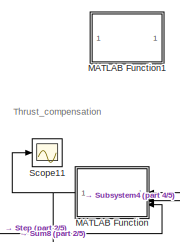
[diagram: root canvas - part 1/5, top left region]
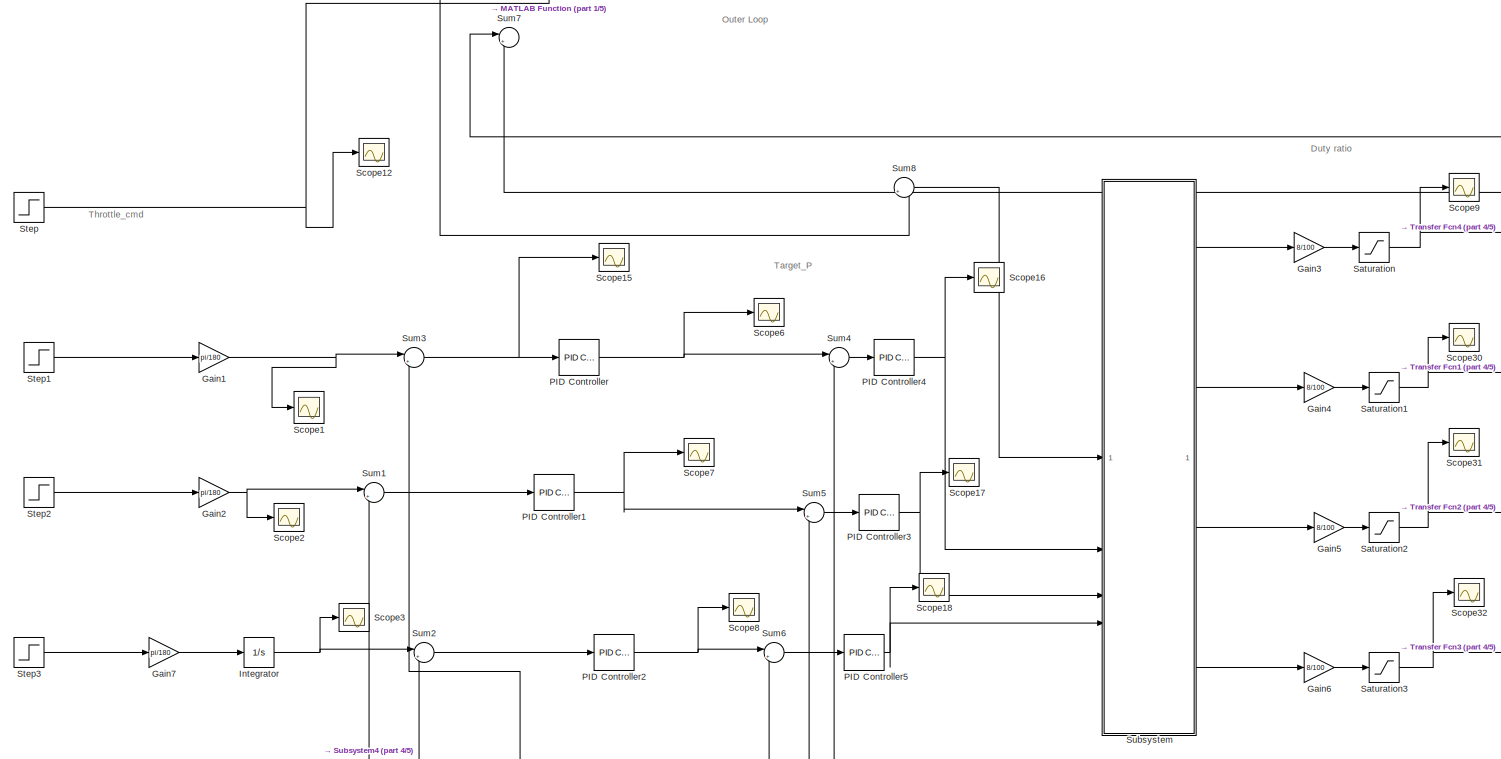
[diagram: root canvas - part 2/5, middle left region]
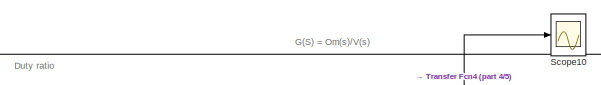
[diagram: root canvas - part 3/5, top center region]
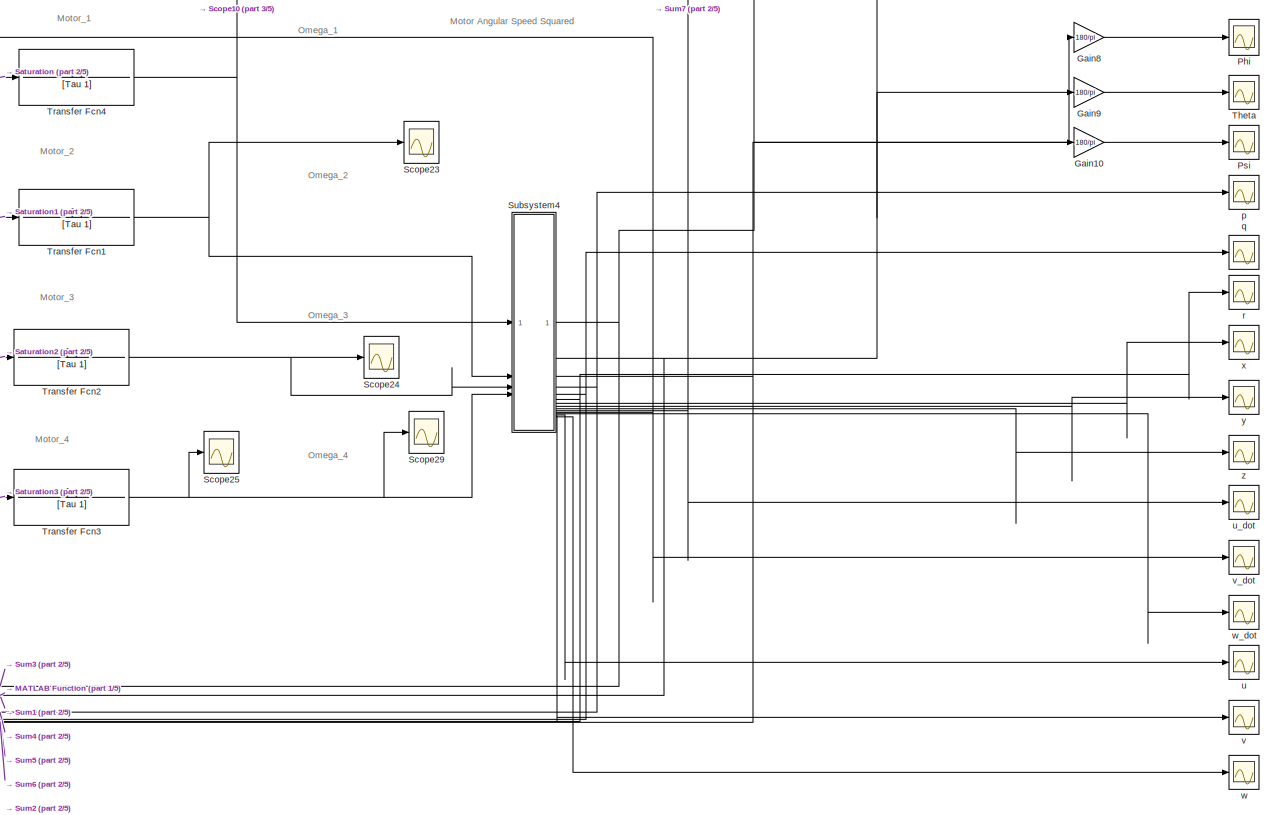
[diagram: root canvas - part 4/5, middle right region]
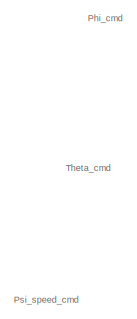
[diagram: root canvas - part 5/5, middle left region]
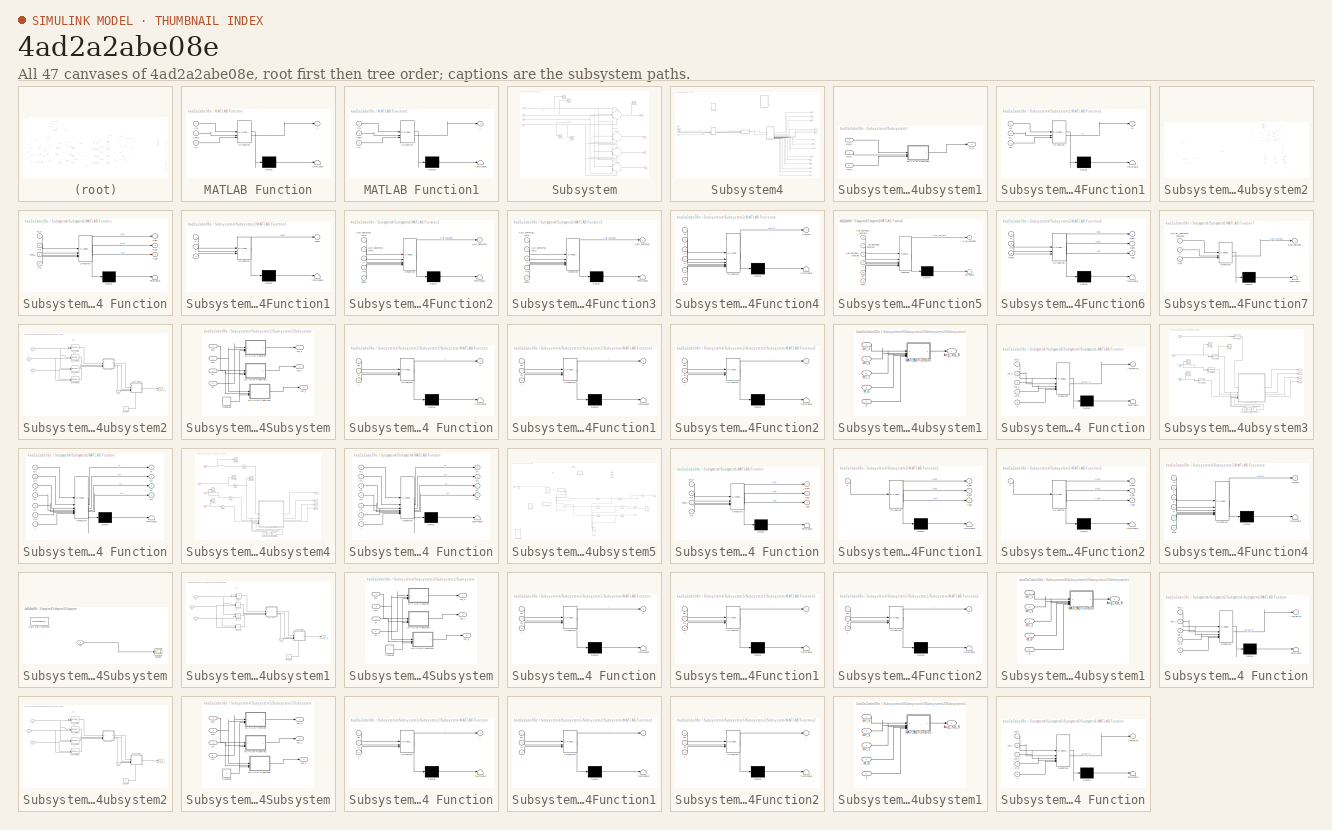
[diagram: thumbnail index - all 47 canvases of the model, root first then tree order]
MODEL slx_4ad2a2abe08e
KIND model
CONFIG AbsTol = auto
CONFIG EnableMultiTasking = off
CONFIG FixedStep = auto
CONFIG MaxStep = auto
CONFIG MinStep = auto
CONFIG RelTol = 1e-3
CONFIG SampleTimeConstraint = Unconstrained
CONFIG SolverName = VariableStepAuto
CONFIG StartTime = 0.0
CONFIG StopTime = 10
BLOCK [Gain] Gain1
  Gain = pi/180
BLOCK [Gain] Gain10
  Gain = 180/pi
BLOCK [Gain] Gain2
  Gain = pi/180
BLOCK [Gain] Gain3
  Gain = 8/100
BLOCK [Gain] Gain4
  Gain = 8/100
BLOCK [Gain] Gain5
  Gain = 8/100
BLOCK [Gain] Gain6
  Gain = 8/100
BLOCK [Gain] Gain7
  Gain = pi/180
BLOCK [Gain] Gain8
  Gain = 180/pi
BLOCK [Gain] Gain9
  Gain = 180/pi
BLOCK [Integrator] Integrator
BLOCK [SubSystem] MATLAB Function
  ErrorFcn = Stateflow.Translate.translate
  LibrarySourceBlock = simulink/User-Defined\nFunctions/MATLAB Function
  PermitHierarchicalResolution = ExplicitOnly
  SFBlockType = MATLAB Function
  TreatAsAtomicUnit = on
BLOCK [Demux] MATLAB Function/ Demux 
  Outputs = 1
BLOCK [S-Function] MATLAB Function/ SFunction 
  EnableBusSupport = on
  FunctionName = sf_sfun
  PortCounts = [3 2]
  SFcnIsStateOwnerBlock = off
  SFunctionDeploymentMode = off
  Tag = Stateflow S-Function 8
BLOCK [Terminator] MATLAB Function/ Terminator 
BLOCK [Inport] MATLAB Function/Phi
BLOCK [Inport] MATLAB Function/Th
  Port = 3
BLOCK [Inport] MATLAB Function/Theta
  Port = 2
BLOCK [Outport] MATLAB Function/y
BLOCK [SubSystem] MATLAB Function1
  ErrorFcn = Stateflow.Translate.translate
  LibrarySourceBlock = simulink/User-Defined\nFunctions/MATLAB Function
  PermitHierarchicalResolution = ExplicitOnly
  SFBlockType = MATLAB Function
  TreatAsAtomicUnit = on
BLOCK [Demux] MATLAB Function1/ Demux 
  Outputs = 1
BLOCK [S-Function] MATLAB Function1/ SFunction 
  EnableBusSupport = on
  FunctionName = sf_sfun
  PortCounts = [3 2]
  SFcnIsStateOwnerBlock = off
  SFunctionDeploymentMode = off
  Tag = Stateflow S-Function 10
BLOCK [Terminator] MATLAB Function1/ Terminator 
BLOCK [Inport] MATLAB Function1/Phi
BLOCK [Inport] MATLAB Function1/Th
  Port = 3
BLOCK [Inport] MATLAB Function1/Theta
  Port = 2
BLOCK [Outport] MATLAB Function1/y
BLOCK [Reference] PID Controller  REF=slpidlib/PID Controller
  LibrarySourceBlock = simulink/Continuous/PID Controller
  SourceBlock = slpidlib/PID Controller
  SourceType = PID 1dof
BLOCK [Reference] PID Controller1  REF=slpidlib/PID Controller
  LibrarySourceBlock = simulink/Continuous/PID Controller
  SourceBlock = slpidlib/PID Controller
  SourceType = PID 1dof
BLOCK [Reference] PID Controller2  REF=slpidlib/PID Controller
  LibrarySourceBlock = simulink/Continuous/PID Controller
  SourceBlock = slpidlib/PID Controller
  SourceType = PID 1dof
BLOCK [Reference] PID Controller3  REF=slpidlib/PID Controller
  LibrarySourceBlock = simulink/Continuous/PID Controller
  SourceBlock = slpidlib/PID Controller
  SourceType = PID 1dof
BLOCK [Reference] PID Controller4  REF=slpidlib/PID Controller
  LibrarySourceBlock = simulink/Continuous/PID Controller
  SourceBlock = slpidlib/PID Controller
  SourceType = PID 1dof
BLOCK [Reference] PID Controller5  REF=slpidlib/PID Controller
  LibrarySourceBlock = simulink/Continuous/PID Controller
  SourceBlock = slpidlib/PID Controller
  SourceType = PID 1dof
BLOCK [Scope] Phi
  Floating = off
  NumInputPorts = 1
  ScopeSpecificationString = Simulink.scopes.TimeScopeBlockCfg('CurrentConfiguration', extmgr.ConfigurationSet(extmgr.Configuration('Core','General UI',true),extmgr.Configuration('Core','Source UI',true),extmgr.Configuration('Sources','WiredSimulink',true,'DataLoggingVariableName','ScopeData8'),extmgr.Configuration('Visuals','Time Domain',true,'SerializedDisplays',{struct('MinYLimReal','-25.69561','MaxYLimReal','22.55419','YL...<+1472ch>
BLOCK [Scope] Psi
  Floating = off
  NumInputPorts = 1
  ScopeSpecificationString = Simulink.scopes.TimeScopeBlockCfg('CurrentConfiguration', extmgr.ConfigurationSet(extmgr.Configuration('Core','General UI',true),extmgr.Configuration('Core','Source UI',true),extmgr.Configuration('Sources','WiredSimulink',true,'DataLoggingVariableName','ScopeData10'),extmgr.Configuration('Visuals','Time Domain',true,'SerializedDisplays',{struct('MinYLimReal','-0.1406','MaxYLimReal','1.25627','YLab...<+1397ch>
BLOCK [Saturate] Saturation
  LowerLimit = 0
  UpperLimit = 8.4
BLOCK [Saturate] Saturation1
  LowerLimit = 0
  UpperLimit = 8.4
BLOCK [Saturate] Saturation2
  LowerLimit = 0
  UpperLimit = 8.4
BLOCK [Saturate] Saturation3
  LowerLimit = 0
  UpperLimit = 8.4
BLOCK [Scope] Scope1
  Floating = off
  NumInputPorts = 1
  ScopeSpecificationString = Simulink.scopes.TimeScopeBlockCfg('CurrentConfiguration', extmgr.ConfigurationSet(extmgr.Configuration('Core','General UI',true),extmgr.Configuration('Core','Source UI',true),extmgr.Configuration('Sources','WiredSimulink',true,'DataLoggingVariableName','ScopeData1'),extmgr.Configuration('Visuals','Time Domain',true,'SerializedDisplays',{struct('MinYLimReal','-0.01091','MaxYLimReal','0.09817','YLab...<+1397ch>
BLOCK [Scope] Scope10
  Floating = off
  NumInputPorts = 1
  ScopeSpecificationString = Simulink.scopes.TimeScopeBlockCfg('CurrentConfiguration', extmgr.ConfigurationSet(extmgr.Configuration('Core','General UI',true),extmgr.Configuration('Core','Source UI',true),extmgr.Configuration('Sources','WiredSimulink',true,'DataLoggingVariableName','ScopeData1'),extmgr.Configuration('Visuals','Time Domain',true,'SerializedDisplays',{struct('MinYLimReal','-1047.32563','MaxYLimReal','9425.93071'...<+1443ch>
BLOCK [Scope] Scope11
  Floating = off
  NumInputPorts = 1
  ScopeSpecificationString = Simulink.scopes.TimeScopeBlockCfg('CurrentConfiguration', extmgr.ConfigurationSet(extmgr.Configuration('Core','General UI',true),extmgr.Configuration('Core','Source UI',true),extmgr.Configuration('Sources','WiredSimulink',true,'DataLoggingVariableName','ScopeData5'),extmgr.Configuration('Visuals','Time Domain',true,'SerializedDisplays',{struct('MinYLimReal','19.9265','MaxYLimReal','19.99149','YLab...<+1406ch>
BLOCK [Scope] Scope12
  Floating = off
  NumInputPorts = 1
  ScopeSpecificationString = Simulink.scopes.TimeScopeBlockCfg('CurrentConfiguration', extmgr.ConfigurationSet(extmgr.Configuration('Core','General UI',true),extmgr.Configuration('Core','Source UI',true),extmgr.Configuration('Sources','WiredSimulink',true,'DataLoggingVariableName','ScopeData15'),extmgr.Configuration('Visuals','Time Domain',true,'SerializedDisplays',{struct('MinYLimReal','9.933','MaxYLimReal','29.933','YLabelR...<+1380ch>
BLOCK [Scope] Scope15
  Floating = off
  NumInputPorts = 1
  ScopeSpecificationString = Simulink.scopes.TimeScopeBlockCfg('CurrentConfiguration', extmgr.ConfigurationSet(extmgr.Configuration('Core','General UI',true),extmgr.Configuration('Core','Source UI',true),extmgr.Configuration('Sources','WiredSimulink',true,'DataLoggingVariableName','ScopeData15'),extmgr.Configuration('Visuals','Time Domain',true,'SerializedDisplays',{struct('MinYLimReal','-0.01091','MaxYLimReal','0.09818','YLa...<+1394ch>
BLOCK [Scope] Scope16
  Floating = off
  NameLocation = right
  NumInputPorts = 1
  ScopeSpecificationString = Simulink.scopes.TimeScopeBlockCfg('CurrentConfiguration', extmgr.ConfigurationSet(extmgr.Configuration('Core','General UI',true),extmgr.Configuration('Core','Source UI',true),extmgr.Configuration('Sources','WiredSimulink',true,'DataLoggingVariableName','ScopeData17'),extmgr.Configuration('Visuals','Time Domain',true,'SerializedDisplays',{struct('MinYLimReal','-1908280205125332826588717182720310817...<+2145ch>
BLOCK [Scope] Scope17
  Floating = off
  NameLocation = right
  NumInputPorts = 1
  ScopeSpecificationString = Simulink.scopes.TimeScopeBlockCfg('CurrentConfiguration', extmgr.ConfigurationSet(extmgr.Configuration('Core','General UI',true),extmgr.Configuration('Core','Source UI',true),extmgr.Configuration('Sources','WiredSimulink',true,'DataLoggingVariableName','ScopeData18'),extmgr.Configuration('Visuals','Time Domain',true,'SerializedDisplays',{struct('MinYLimReal','-197.05834','MaxYLimReal','124.1889','...<+1417ch>
BLOCK [Scope] Scope18
  Floating = off
  NameLocation = right
  NumInputPorts = 1
  ScopeSpecificationString = Simulink.scopes.TimeScopeBlockCfg('CurrentConfiguration', extmgr.ConfigurationSet(extmgr.Configuration('Core','General UI',true),extmgr.Configuration('Core','Source UI',true),extmgr.Configuration('Sources','WiredSimulink',true,'DataLoggingVariableName','ScopeData19'),extmgr.Configuration('Visuals','Time Domain',true,'SerializedDisplays',{struct('MinYLimReal','-1.59341','MaxYLimReal','5.93784','YLa...<+1404ch>
BLOCK [Scope] Scope2
  Floating = off
  NumInputPorts = 1
  ScopeSpecificationString = Simulink.scopes.TimeScopeBlockCfg('CurrentConfiguration', extmgr.ConfigurationSet(extmgr.Configuration('Core','General UI',true),extmgr.Configuration('Core','Source UI',true),extmgr.Configuration('Sources','WiredSimulink',true,'DataLoggingVariableName','ScopeData6'),extmgr.Configuration('Visuals','Time Domain',true,'SerializedDisplays',{struct('MinYLimReal','-0.19635','MaxYLimReal','0.02182','YLab...<+1394ch>
BLOCK [Scope] Scope23
  Floating = off
  NumInputPorts = 1
  ScopeSpecificationString = Simulink.scopes.TimeScopeBlockCfg('CurrentConfiguration', extmgr.ConfigurationSet(extmgr.Configuration('Core','General UI',true),extmgr.Configuration('Core','Source UI',true),extmgr.Configuration('Sources','WiredSimulink',true,'DataLoggingVariableName','ScopeData20'),extmgr.Configuration('Visuals','Time Domain',true,'SerializedDisplays',{struct('MinYLimReal','-787.02391','MaxYLimReal','7083.21515'...<+1421ch>
BLOCK [Scope] Scope24
  Floating = off
  NumInputPorts = 1
  ScopeSpecificationString = Simulink.scopes.TimeScopeBlockCfg('CurrentConfiguration', extmgr.ConfigurationSet(extmgr.Configuration('Core','General UI',true),extmgr.Configuration('Core','Source UI',true),extmgr.Configuration('Sources','WiredSimulink',true,'DataLoggingVariableName','ScopeData21'),extmgr.Configuration('Visuals','Time Domain',true,'SerializedDisplays',{struct('MinYLimReal','-786.58332','MaxYLimReal','7079.24991'...<+1421ch>
BLOCK [Scope] Scope25
  Floating = off
  NumInputPorts = 1
  ScopeSpecificationString = Simulink.scopes.TimeScopeBlockCfg('CurrentConfiguration', extmgr.ConfigurationSet(extmgr.Configuration('Core','General UI',true),extmgr.Configuration('Core','Source UI',true),extmgr.Configuration('Sources','WiredSimulink',true,'DataLoggingVariableName','ScopeData22'),extmgr.Configuration('Visuals','Time Domain',true,'SerializedDisplays',{struct('MinYLimReal','-1105.72222','MaxYLimReal','9951.50002...<+1425ch>
BLOCK [Scope] Scope29
  Floating = off
  NumInputPorts = 1
  ScopeSpecificationString = Simulink.scopes.TimeScopeBlockCfg('CurrentConfiguration', extmgr.ConfigurationSet(extmgr.Configuration('Core','General UI',true),extmgr.Configuration('Core','Source UI',true),extmgr.Configuration('Sources','WiredSimulink',true,'DataLoggingVariableName','ScopeData26'),extmgr.Configuration('Visuals','Time Domain',true,'SerializedDisplays',{struct('MinYLimReal','-1105.72222','MaxYLimReal','9951.50002...<+1425ch>
BLOCK [Scope] Scope3
  Floating = off
  NumInputPorts = 1
  ScopeSpecificationString = Simulink.scopes.TimeScopeBlockCfg('CurrentConfiguration', extmgr.ConfigurationSet(extmgr.Configuration('Core','General UI',true),extmgr.Configuration('Core','Source UI',true),extmgr.Configuration('Sources','WiredSimulink',true,'DataLoggingVariableName','ScopeData7'),extmgr.Configuration('Visuals','Time Domain',true,'SerializedDisplays',{struct('MinYLimReal','-1.00000','MaxYLimReal','1.00000','YLab...<+1394ch>
BLOCK [Scope] Scope30
  Floating = off
  NumInputPorts = 1
  ScopeSpecificationString = Simulink.scopes.TimeScopeBlockCfg('CurrentConfiguration', extmgr.ConfigurationSet(extmgr.Configuration('Core','General UI',true),extmgr.Configuration('Core','Source UI',true),extmgr.Configuration('Sources','WiredSimulink',true,'DataLoggingVariableName','ScopeData27'),extmgr.Configuration('Visuals','Time Domain',true,'SerializedDisplays',{struct('MinYLimReal','1.53494','MaxYLimReal','1.67704','YLab...<+1393ch>
BLOCK [Scope] Scope31
  Floating = off
  NumInputPorts = 1
  ScopeSpecificationString = Simulink.scopes.TimeScopeBlockCfg('CurrentConfiguration', extmgr.ConfigurationSet(extmgr.Configuration('Core','General UI',true),extmgr.Configuration('Core','Source UI',true),extmgr.Configuration('Sources','WiredSimulink',true,'DataLoggingVariableName','ScopeData28'),extmgr.Configuration('Visuals','Time Domain',true,'SerializedDisplays',{struct('MinYLimReal','-520.45531','MaxYLimReal','1091.85069'...<+1413ch>
BLOCK [Scope] Scope32
  Floating = off
  NumInputPorts = 1
  ScopeSpecificationString = Simulink.scopes.TimeScopeBlockCfg('CurrentConfiguration', extmgr.ConfigurationSet(extmgr.Configuration('Core','General UI',true),extmgr.Configuration('Core','Source UI',true),extmgr.Configuration('Sources','WiredSimulink',true,'DataLoggingVariableName','ScopeData29'),extmgr.Configuration('Visuals','Time Domain',true,'SerializedDisplays',{struct('MinYLimReal','-1.05','MaxYLimReal','9.45','YLabelRea...<+1383ch>
BLOCK [Scope] Scope6
  Floating = off
  NumInputPorts = 1
  ScopeSpecificationString = Simulink.scopes.TimeScopeBlockCfg('CurrentConfiguration', extmgr.ConfigurationSet(extmgr.Configuration('Core','General UI',true),extmgr.Configuration('Core','Source UI',true),extmgr.Configuration('Sources','WiredSimulink',true,'DataLoggingVariableName','ScopeData11'),extmgr.Configuration('Visuals','Time Domain',true,'SerializedDisplays',{struct('MinYLimReal','-0.03273','MaxYLimReal','0.29453','YLa...<+1404ch>
BLOCK [Scope] Scope7
  Floating = off
  NumInputPorts = 1
  ScopeSpecificationString = Simulink.scopes.TimeScopeBlockCfg('CurrentConfiguration', extmgr.ConfigurationSet(extmgr.Configuration('Core','General UI',true),extmgr.Configuration('Core','Source UI',true),extmgr.Configuration('Sources','WiredSimulink',true,'DataLoggingVariableName','ScopeData12'),extmgr.Configuration('Visuals','Time Domain',true,'SerializedDisplays',{struct('MinYLimReal','-0.5891','MaxYLimReal','0.06589','YLab...<+1401ch>
BLOCK [Scope] Scope8
  Floating = off
  NumInputPorts = 1
  ScopeSpecificationString = Simulink.scopes.TimeScopeBlockCfg('CurrentConfiguration', extmgr.ConfigurationSet(extmgr.Configuration('Core','General UI',true),extmgr.Configuration('Core','Source UI',true),extmgr.Configuration('Sources','WiredSimulink',true,'DataLoggingVariableName','ScopeData13'),extmgr.Configuration('Visuals','Time Domain',true,'SerializedDisplays',{struct('MinYLimReal','-31.05535','MaxYLimReal','226.80917','...<+1415ch>
BLOCK [Scope] Scope9
  Floating = off
  NumInputPorts = 1
  ScopeSpecificationString = Simulink.scopes.TimeScopeBlockCfg('CurrentConfiguration', extmgr.ConfigurationSet(extmgr.Configuration('Core','General UI',true),extmgr.Configuration('Core','Source UI',true),extmgr.Configuration('Sources','WiredSimulink',true,'DataLoggingVariableName','ScopeData16'),extmgr.Configuration('Visuals','Time Domain',true,'SerializedDisplays',{struct('MinYLimReal','-1.03709','MaxYLimReal','9.33379','YLa...<+1400ch>
BLOCK [Step] Step
  After = 19.933
  Before = 19.933
  SampleTime = 0
  Time = 0
BLOCK [Step] Step1
  After = 5
  SampleTime = 0
  Time = 2
BLOCK [Step] Step2
  After = -10
  SampleTime = 0
  Time = 2
BLOCK [Step] Step3
  After = 0
  SampleTime = 0
BLOCK [SubSystem] Subsystem
BLOCK [Inport] Subsystem/In1
  Port = 2
BLOCK [Inport] Subsystem/In2
  Port = 3
BLOCK [Inport] Subsystem/In3
  Port = 4
BLOCK [Outport] Subsystem/Out1
BLOCK [Outport] Subsystem/Out2
  Port = 2
BLOCK [Outport] Subsystem/Out3
  Port = 3
BLOCK [Outport] Subsystem/Out4
  Port = 4
BLOCK [Scope] Subsystem/Scope
  Floating = off
  NumInputPorts = 1
  ScopeSpecificationString = Simulink.scopes.TimeScopeBlockCfg('CurrentConfiguration', extmgr.ConfigurationSet(extmgr.Configuration('Core','General UI',true),extmgr.Configuration('Core','Source UI',true),extmgr.Configuration('Sources','WiredSimulink',true,'DataLoggingVariableName','ScopeData2'),extmgr.Configuration('Visuals','Time Domain',true,'SerializedDisplays',{struct('MinYLimReal','19.9265','MaxYLimReal','19.99149','YLab...<+1397ch>
BLOCK [Scope] Subsystem/Scope1
  Floating = off
  NumInputPorts = 1
  ScopeSpecificationString = Simulink.scopes.TimeScopeBlockCfg('CurrentConfiguration', extmgr.ConfigurationSet(extmgr.Configuration('Core','General UI',true),extmgr.Configuration('Core','Source UI',true),extmgr.Configuration('Sources','WiredSimulink',true,'DataLoggingVariableName','ScopeData2'),extmgr.Configuration('Visuals','Time Domain',true,'SerializedDisplays',{struct('MinYLimReal','-93.92736','MaxYLimReal','125.66838','Y...<+1373ch>
BLOCK [Scope] Subsystem/Scope2
  Floating = off
  NumInputPorts = 1
  ScopeSpecificationString = Simulink.scopes.TimeScopeBlockCfg('CurrentConfiguration', extmgr.ConfigurationSet(extmgr.Configuration('Core','General UI',true),extmgr.Configuration('Core','Source UI',true),extmgr.Configuration('Sources','WiredSimulink',true,'DataLoggingVariableName','ScopeData3'),extmgr.Configuration('Visuals','Time Domain',true,'SerializedDisplays',{struct('MinYLimReal','-23.44004','MaxYLimReal','92.77979','YL...<+1368ch>
BLOCK [Scope] Subsystem/Scope3
  Floating = off
  NumInputPorts = 1
  ScopeSpecificationString = Simulink.scopes.TimeScopeBlockCfg('CurrentConfiguration', extmgr.ConfigurationSet(extmgr.Configuration('Core','General UI',true),extmgr.Configuration('Core','Source UI',true),extmgr.Configuration('Sources','WiredSimulink',true,'DataLoggingVariableName','ScopeData4'),extmgr.Configuration('Visuals','Time Domain',true,'SerializedDisplays',{struct('MinYLimReal','-197.05834','MaxYLimReal','124.1889','Y...<+1374ch>
BLOCK [Scope] Subsystem/Scope4
  Floating = off
  NumInputPorts = 1
  ScopeSpecificationString = Simulink.scopes.TimeScopeBlockCfg('CurrentConfiguration', extmgr.ConfigurationSet(extmgr.Configuration('Core','General UI',true),extmgr.Configuration('Core','Source UI',true),extmgr.Configuration('Sources','WiredSimulink',true,'DataLoggingVariableName','ScopeData5'),extmgr.Configuration('Visuals','Time Domain',true,'SerializedDisplays',{struct('MinYLimReal','-9.96298','MaxYLimReal','1.1198','YLabe...<+1360ch>
BLOCK [Sum] Subsystem/Sum6
  Inputs = |+---
BLOCK [Sum] Subsystem/Sum7
  Inputs = |+-++
BLOCK [Sum] Subsystem/Sum8
  Inputs = |+++-
BLOCK [Sum] Subsystem/Sum9
  Inputs = |++-+
BLOCK [Inport] Subsystem/y
BLOCK [SubSystem] Subsystem4
BLOCK [Inport] Subsystem4/In2
  Port = 2
BLOCK [Inport] Subsystem4/O1
BLOCK [Inport] Subsystem4/O2
  Port = 3
BLOCK [Inport] Subsystem4/O3
  Port = 4
BLOCK [Inport] Subsystem4/O4
  Port = 5
BLOCK [Outport] Subsystem4/Phi
BLOCK [Outport] Subsystem4/Psi
  Port = 3
BLOCK [SubSystem] Subsystem4/Subsystem1
BLOCK [SubSystem] Subsystem4/Subsystem1/MATLAB Function1
  ErrorFcn = Stateflow.Translate.translate
  LibrarySourceBlock = simulink/User-Defined\nFunctions/MATLAB Function
  PermitHierarchicalResolution = ExplicitOnly
  SFBlockType = MATLAB Function
  TreatAsAtomicUnit = on
BLOCK [Demux] Subsystem4/Subsystem1/MATLAB Function1/ Demux 
  Outputs = 1
BLOCK [S-Function] Subsystem4/Subsystem1/MATLAB Function1/ SFunction 
  EnableBusSupport = on
  FunctionName = sf_sfun
  PortCounts = [3 2]
  SFcnIsStateOwnerBlock = off
  SFunctionDeploymentMode = off
  Tag = Stateflow S-Function 5
BLOCK [Terminator] Subsystem4/Subsystem1/MATLAB Function1/ Terminator 
BLOCK [Outport] Subsystem4/Subsystem1/MATLAB Function1/M
BLOCK [Inport] Subsystem4/Subsystem1/MATLAB Function1/Mx
BLOCK [Inport] Subsystem4/Subsystem1/MATLAB Function1/My
  Port = 2
BLOCK [Inport] Subsystem4/Subsystem1/MATLAB Function1/Mz
  Port = 3
BLOCK [Outport] Subsystem4/Subsystem1/M_b
BLOCK [Inport] Subsystem4/Subsystem1/Mx_b
BLOCK [Inport] Subsystem4/Subsystem1/My_b
  Port = 2
BLOCK [Inport] Subsystem4/Subsystem1/Mz_b
  Port = 3
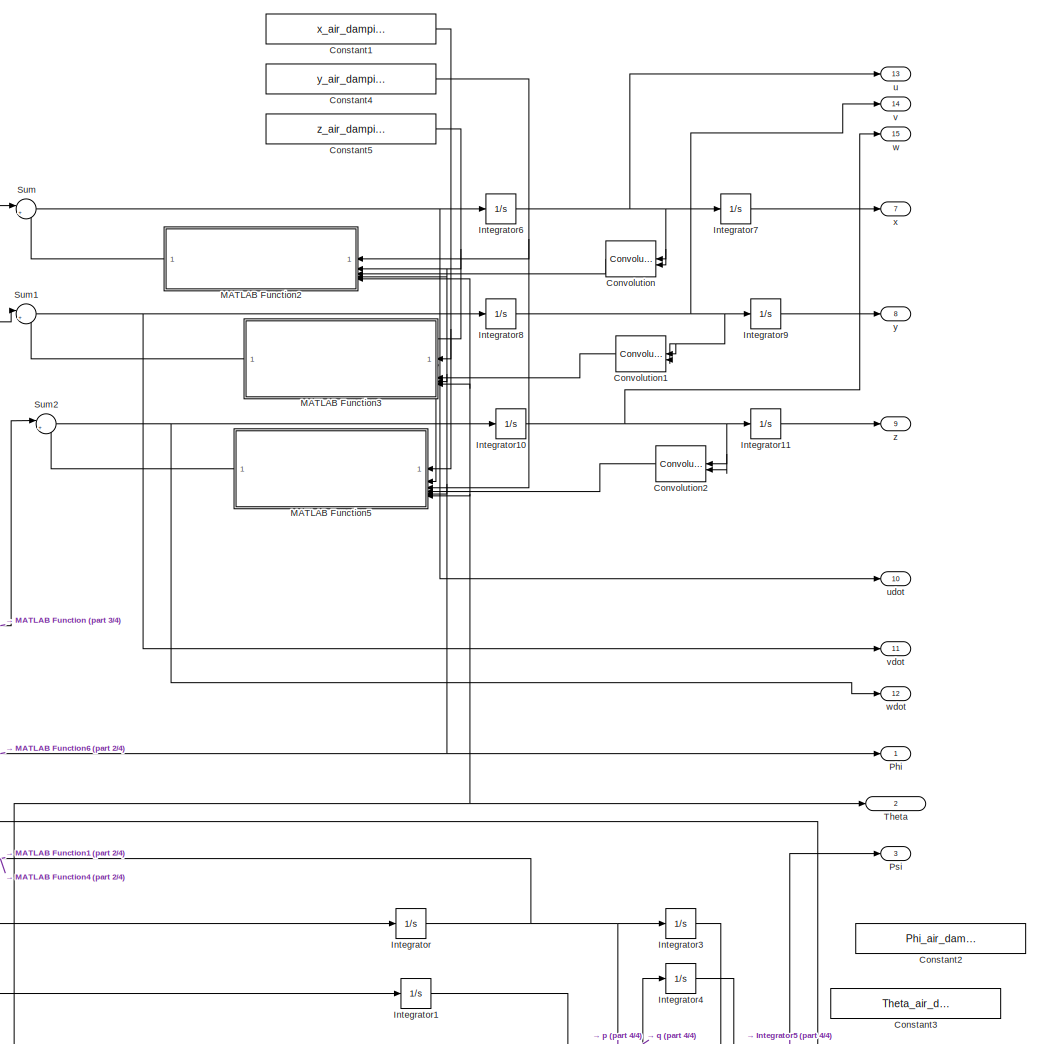
[diagram: Subsystem4/Subsystem2 - part 1/4, middle right region]
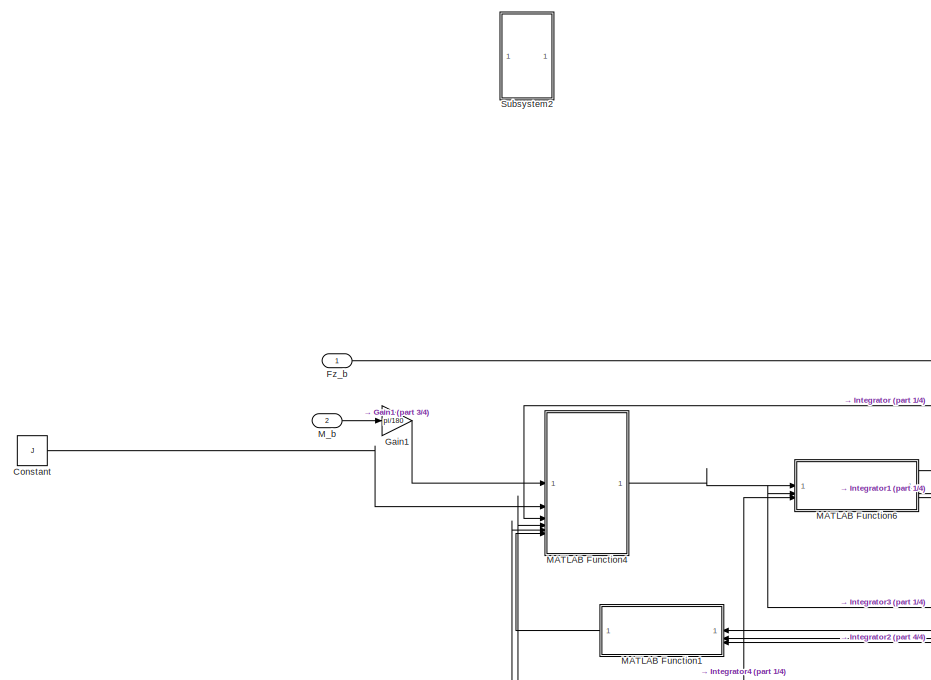
[diagram: Subsystem4/Subsystem2 - part 2/4, middle left region]
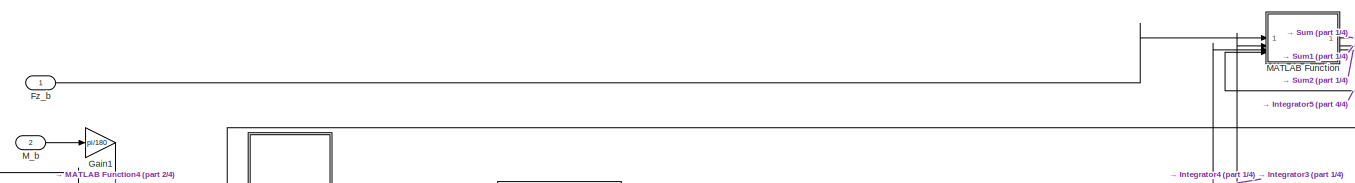
[diagram: Subsystem4/Subsystem2 - part 3/4, middle left region]
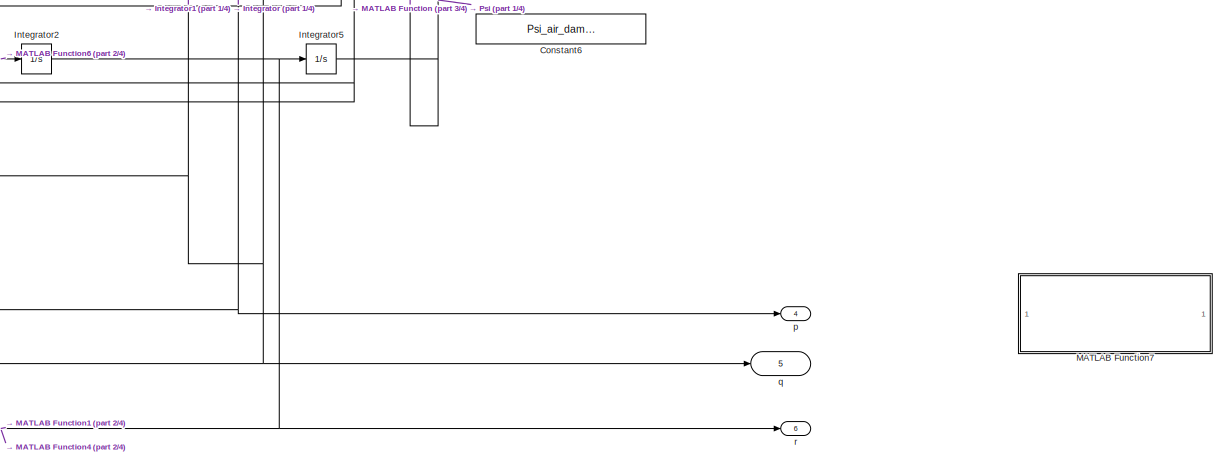
[diagram: Subsystem4/Subsystem2 - part 4/4, bottom right region]
BLOCK [SubSystem] Subsystem4/Subsystem2
BLOCK [Constant] Subsystem4/Subsystem2/Constant
  Value = J
BLOCK [Constant] Subsystem4/Subsystem2/Constant1
  Value = x_air_damping_ratio
BLOCK [Constant] Subsystem4/Subsystem2/Constant2
  Value = Phi_air_damping_constant
BLOCK [Constant] Subsystem4/Subsystem2/Constant3
  Value = Theta_air_damping_constant
BLOCK [Constant] Subsystem4/Subsystem2/Constant4
  Value = y_air_damping_ratio
BLOCK [Constant] Subsystem4/Subsystem2/Constant5
  Value = z_air_damping_ratio
BLOCK [Constant] Subsystem4/Subsystem2/Constant6
  Value = Psi_air_damping_constant
BLOCK [Reference] Subsystem4/Subsystem2/Convolution  REF=dspsigops/Convolution
  SourceBlock = dspsigops/Convolution
  SourceType = Convolution
BLOCK [Reference] Subsystem4/Subsystem2/Convolution1  REF=dspsigops/Convolution
  SourceBlock = dspsigops/Convolution
  SourceType = Convolution
BLOCK [Reference] Subsystem4/Subsystem2/Convolution2  REF=dspsigops/Convolution
  SourceBlock = dspsigops/Convolution
  SourceType = Convolution
BLOCK [Inport] Subsystem4/Subsystem2/Fz_b
BLOCK [Gain] Subsystem4/Subsystem2/Gain1
  Gain = pi/180
BLOCK [Integrator] Subsystem4/Subsystem2/Integrator
BLOCK [Integrator] Subsystem4/Subsystem2/Integrator1
BLOCK [Integrator] Subsystem4/Subsystem2/Integrator10
BLOCK [Integrator] Subsystem4/Subsystem2/Integrator11
BLOCK [Integrator] Subsystem4/Subsystem2/Integrator2
BLOCK [Integrator] Subsystem4/Subsystem2/Integrator3
BLOCK [Integrator] Subsystem4/Subsystem2/Integrator4
BLOCK [Integrator] Subsystem4/Subsystem2/Integrator5
BLOCK [Integrator] Subsystem4/Subsystem2/Integrator6
BLOCK [Integrator] Subsystem4/Subsystem2/Integrator7
BLOCK [Integrator] Subsystem4/Subsystem2/Integrator8
BLOCK [Integrator] Subsystem4/Subsystem2/Integrator9
BLOCK [SubSystem] Subsystem4/Subsystem2/MATLAB Function
  ErrorFcn = Stateflow.Translate.translate
  LibrarySourceBlock = simulink/User-Defined\nFunctions/MATLAB Function
  PermitHierarchicalResolution = ExplicitOnly
  SFBlockType = MATLAB Function
  TreatAsAtomicUnit = on
BLOCK [Demux] Subsystem4/Subsystem2/MATLAB Function/ Demux 
  Outputs = 1
BLOCK [S-Function] Subsystem4/Subsystem2/MATLAB Function/ SFunction 
  EnableBusSupport = on
  FunctionName = sf_sfun
  PortCounts = [4 4]
  SFcnIsStateOwnerBlock = off
  SFunctionDeploymentMode = off
  Tag = Stateflow S-Function 3
BLOCK [Terminator] Subsystem4/Subsystem2/MATLAB Function/ Terminator 
BLOCK [Inport] Subsystem4/Subsystem2/MATLAB Function/Fz_b
BLOCK [Inport] Subsystem4/Subsystem2/MATLAB Function/Phi
  Port = 2
BLOCK [Inport] Subsystem4/Subsystem2/MATLAB Function/Psi
  Port = 4
BLOCK [Inport] Subsystem4/Subsystem2/MATLAB Function/Theta
  Port = 3
BLOCK [Outport] Subsystem4/Subsystem2/MATLAB Function/r_dot
  Port = 3
BLOCK [Outport] Subsystem4/Subsystem2/MATLAB Function/u_dot
BLOCK [Outport] Subsystem4/Subsystem2/MATLAB Function/v_dot
  Port = 2
BLOCK [SubSystem] Subsystem4/Subsystem2/MATLAB Function1
  ErrorFcn = Stateflow.Translate.translate
  LibrarySourceBlock = simulink/User-Defined\nFunctions/MATLAB Function
  PermitHierarchicalResolution = ExplicitOnly
  SFBlockType = MATLAB Function
  TreatAsAtomicUnit = on
BLOCK [Demux] Subsystem4/Subsystem2/MATLAB Function1/ Demux 
  Outputs = 1
BLOCK [S-Function] Subsystem4/Subsystem2/MATLAB Function1/ SFunction 
  EnableBusSupport = on
  FunctionName = sf_sfun
  PortCounts = [3 2]
  SFcnIsStateOwnerBlock = off
  SFunctionDeploymentMode = off
  Tag = Stateflow S-Function 6
BLOCK [Terminator] Subsystem4/Subsystem2/MATLAB Function1/ Terminator 
BLOCK [Inport] Subsystem4/Subsystem2/MATLAB Function1/p
BLOCK [Inport] Subsystem4/Subsystem2/MATLAB Function1/q
  Port = 2
BLOCK [Inport] Subsystem4/Subsystem2/MATLAB Function1/r
  Port = 3
BLOCK [Outport] Subsystem4/Subsystem2/MATLAB Function1/skew
BLOCK [SubSystem] Subsystem4/Subsystem2/MATLAB Function2
  ErrorFcn = Stateflow.Translate.translate
  LibrarySourceBlock = simulink/User-Defined\nFunctions/MATLAB Function
  PermitHierarchicalResolution = ExplicitOnly
  SFBlockType = MATLAB Function
  TreatAsAtomicUnit = on
BLOCK [Demux] Subsystem4/Subsystem2/MATLAB Function2/ Demux 
  Outputs = 1
BLOCK [S-Function] Subsystem4/Subsystem2/MATLAB Function2/ SFunction 
  EnableBusSupport = on
  FunctionName = sf_sfun
  PortCounts = [5 2]
  SFcnIsStateOwnerBlock = off
  SFunctionDeploymentMode = off
  Tag = Stateflow S-Function 11
BLOCK [Terminator] Subsystem4/Subsystem2/MATLAB Function2/ Terminator 
BLOCK [Inport] Subsystem4/Subsystem2/MATLAB Function2/Phi
  Port = 4
BLOCK [Inport] Subsystem4/Subsystem2/MATLAB Function2/Theta
  Port = 5
BLOCK [Inport] Subsystem4/Subsystem2/MATLAB Function2/u
  Port = 3
BLOCK [Outport] Subsystem4/Subsystem2/MATLAB Function2/u_air_damping
BLOCK [Inport] Subsystem4/Subsystem2/MATLAB Function2/x_air_damping_ratio
BLOCK [Inport] Subsystem4/Subsystem2/MATLAB Function2/z_air_damping_ratio
  Port = 2
BLOCK [SubSystem] Subsystem4/Subsystem2/MATLAB Function3
  ErrorFcn = Stateflow.Translate.translate
  LibrarySourceBlock = simulink/User-Defined\nFunctions/MATLAB Function
  PermitHierarchicalResolution = ExplicitOnly
  SFBlockType = MATLAB Function
  TreatAsAtomicUnit = on
BLOCK [Demux] Subsystem4/Subsystem2/MATLAB Function3/ Demux 
  Outputs = 1
BLOCK [S-Function] Subsystem4/Subsystem2/MATLAB Function3/ SFunction 
  EnableBusSupport = on
  FunctionName = sf_sfun
  PortCounts = [5 2]
  SFcnIsStateOwnerBlock = off
  SFunctionDeploymentMode = off
  Tag = Stateflow S-Function 27
BLOCK [Terminator] Subsystem4/Subsystem2/MATLAB Function3/ Terminator 
BLOCK [Inport] Subsystem4/Subsystem2/MATLAB Function3/Phi
  Port = 4
BLOCK [Inport] Subsystem4/Subsystem2/MATLAB Function3/Theta
  Port = 5
BLOCK [Inport] Subsystem4/Subsystem2/MATLAB Function3/u
  Port = 3
BLOCK [Outport] Subsystem4/Subsystem2/MATLAB Function3/u_air_damping
BLOCK [Inport] Subsystem4/Subsystem2/MATLAB Function3/x_air_damping_ratio
BLOCK [Inport] Subsystem4/Subsystem2/MATLAB Function3/z_air_damping_ratio
  Port = 2
BLOCK [SubSystem] Subsystem4/Subsystem2/MATLAB Function4
  ErrorFcn = Stateflow.Translate.translate
  LibrarySourceBlock = simulink/User-Defined\nFunctions/MATLAB Function
  NameLocation = left
  PermitHierarchicalResolution = ExplicitOnly
  SFBlockType = MATLAB Function
  TreatAsAtomicUnit = on
BLOCK [Demux] Subsystem4/Subsystem2/MATLAB Function4/ Demux 
  Outputs = 1
BLOCK [S-Function] Subsystem4/Subsystem2/MATLAB Function4/ SFunction 
  EnableBusSupport = on
  FunctionName = sf_sfun
  PortCounts = [6 2]
  SFcnIsStateOwnerBlock = off
  SFunctionDeploymentMode = off
  Tag = Stateflow S-Function 7
BLOCK [Terminator] Subsystem4/Subsystem2/MATLAB Function4/ Terminator 
BLOCK [Outport] Subsystem4/Subsystem2/MATLAB Function4/Ang_acc
BLOCK [Inport] Subsystem4/Subsystem2/MATLAB Function4/J
  Port = 2
BLOCK [Inport] Subsystem4/Subsystem2/MATLAB Function4/M
BLOCK [Inport] Subsystem4/Subsystem2/MATLAB Function4/p
  Port = 3
BLOCK [Inport] Subsystem4/Subsystem2/MATLAB Function4/q
  Port = 4
BLOCK [Inport] Subsystem4/Subsystem2/MATLAB Function4/r
  Port = 5
BLOCK [Inport] Subsystem4/Subsystem2/MATLAB Function4/skew
  Port = 6
BLOCK [SubSystem] Subsystem4/Subsystem2/MATLAB Function5
  ErrorFcn = Stateflow.Translate.translate
  LibrarySourceBlock = simulink/User-Defined\nFunctions/MATLAB Function
  PermitHierarchicalResolution = ExplicitOnly
  SFBlockType = MATLAB Function
  TreatAsAtomicUnit = on
BLOCK [Demux] Subsystem4/Subsystem2/MATLAB Function5/ Demux 
  Outputs = 1
BLOCK [S-Function] Subsystem4/Subsystem2/MATLAB Function5/ SFunction 
  EnableBusSupport = on
  FunctionName = sf_sfun
  PortCounts = [6 2]
  SFcnIsStateOwnerBlock = off
  SFunctionDeploymentMode = off
  Tag = Stateflow S-Function 28
BLOCK [Terminator] Subsystem4/Subsystem2/MATLAB Function5/ Terminator 
BLOCK [Inport] Subsystem4/Subsystem2/MATLAB Function5/Phi
  Port = 5
BLOCK [Inport] Subsystem4/Subsystem2/MATLAB Function5/Theta
  Port = 6
BLOCK [Inport] Subsystem4/Subsystem2/MATLAB Function5/u
  Port = 4
BLOCK [Outport] Subsystem4/Subsystem2/MATLAB Function5/w_air_damping
BLOCK [Inport] Subsystem4/Subsystem2/MATLAB Function5/x_air_damping_constatn
BLOCK [Inport] Subsystem4/Subsystem2/MATLAB Function5/y_air_damping_constant
  Port = 2
BLOCK [Inport] Subsystem4/Subsystem2/MATLAB Function5/z_air_damping_constant
  Port = 3
BLOCK [SubSystem] Subsystem4/Subsystem2/MATLAB Function6
  ErrorFcn = Stateflow.Translate.translate
  LibrarySourceBlock = simulink/User-Defined\nFunctions/MATLAB Function
  PermitHierarchicalResolution = ExplicitOnly
  SFBlockType = MATLAB Function
  TreatAsAtomicUnit = on
BLOCK [Demux] Subsystem4/Subsystem2/MATLAB Function6/ Demux 
  Outputs = 1
BLOCK [S-Function] Subsystem4/Subsystem2/MATLAB Function6/ SFunction 
  EnableBusSupport = on
  FunctionName = sf_sfun
  PortCounts = [3 4]
  SFcnIsStateOwnerBlock = off
  SFunctionDeploymentMode = off
  Tag = Stateflow S-Function 9
BLOCK [Terminator] Subsystem4/Subsystem2/MATLAB Function6/ Terminator 
BLOCK [Inport] Subsystem4/Subsystem2/MATLAB Function6/Phi
  Port = 2
BLOCK [Inport] Subsystem4/Subsystem2/MATLAB Function6/Theta
  Port = 3
BLOCK [Outport] Subsystem4/Subsystem2/MATLAB Function6/p_dot
BLOCK [Outport] Subsystem4/Subsystem2/MATLAB Function6/q_dot
  Port = 2
BLOCK [Outport] Subsystem4/Subsystem2/MATLAB Function6/r_dot
  Port = 3
BLOCK [Inport] Subsystem4/Subsystem2/MATLAB Function6/u
BLOCK [SubSystem] Subsystem4/Subsystem2/MATLAB Function7
  ErrorFcn = Stateflow.Translate.translate
  LibrarySourceBlock = simulink/User-Defined\nFunctions/MATLAB Function
  PermitHierarchicalResolution = ExplicitOnly
  SFBlockType = MATLAB Function
  TreatAsAtomicUnit = on
BLOCK [Demux] Subsystem4/Subsystem2/MATLAB Function7/ Demux 
  Outputs = 1
BLOCK [S-Function] Subsystem4/Subsystem2/MATLAB Function7/ SFunction 
  EnableBusSupport = on
  FunctionName = sf_sfun
  PortCounts = [3 2]
  SFcnIsStateOwnerBlock = off
  SFunctionDeploymentMode = off
  Tag = Stateflow S-Function 29
BLOCK [Terminator] Subsystem4/Subsystem2/MATLAB Function7/ Terminator 
BLOCK [Inport] Subsystem4/Subsystem2/MATLAB Function7/Psi_air_damping_constant
BLOCK [Inport] Subsystem4/Subsystem2/MATLAB Function7/q_dot
  Port = 3
BLOCK [Outport] Subsystem4/Subsystem2/MATLAB Function7/q_dot_damped
BLOCK [Inport] Subsystem4/Subsystem2/MATLAB Function7/u
  Port = 2
BLOCK [Inport] Subsystem4/Subsystem2/M_b
  Port = 2
BLOCK [Outport] Subsystem4/Subsystem2/Phi
  NameLocation = top
BLOCK [Outport] Subsystem4/Subsystem2/Psi
  Port = 3
BLOCK [SubSystem] Subsystem4/Subsystem2/Subsystem2
  PortSchema = {"entries":[{"content":{"sides":[{"content":{"connectorIds":["In1","In2","In3"]},"type":"ConnectorPlacement.EquallySpacedRectSide","uuid":"7e47c556-e7ea-4b92-bd73-2618c8afdf66"},{"content":{"connectorIds":["Out1"],"side":"RIGHT"},"type":"ConnectorPlacement.EquallySpacedRectSide","uuid":"8df0990a-ca25-4c34-ba36-930149f0a751"},{"content":{"connectorIds":["In4"],"side":"TOP"},"type":"ConnectorPlaceme...<+383ch>  <repeated x3 — deduplicated; at blocks: Subsystem2, Subsystem1>
BLOCK [Outport] Subsystem4/Subsystem2/Subsystem2/Ang_acc_B
BLOCK [Constant] Subsystem4/Subsystem2/Subsystem2/Constant
  Value = J
BLOCK [Reference] Subsystem4/Subsystem2/Subsystem2/Convolution  REF=dspsigops/Convolution
  SourceBlock = dspsigops/Convolution
  SourceType = Convolution
BLOCK [Reference] Subsystem4/Subsystem2/Subsystem2/Convolution1  REF=dspsigops/Convolution
  SourceBlock = dspsigops/Convolution
  SourceType = Convolution
BLOCK [Reference] Subsystem4/Subsystem2/Subsystem2/Convolution2  REF=dspsigops/Convolution
  SourceBlock = dspsigops/Convolution
  SourceType = Convolution
BLOCK [Reference] Subsystem4/Subsystem2/Subsystem2/Convolution3  REF=dspsigops/Convolution
  SourceBlock = dspsigops/Convolution
  SourceType = Convolution
BLOCK [Inport] Subsystem4/Subsystem2/Subsystem2/In1
BLOCK [Inport] Subsystem4/Subsystem2/Subsystem2/In3
  Port = 2
BLOCK [Inport] Subsystem4/Subsystem2/Subsystem2/In4
  Port = 3
BLOCK [Inport] Subsystem4/Subsystem2/Subsystem2/M_B
  Port = 4
BLOCK [SubSystem] Subsystem4/Subsystem2/Subsystem2/Subsystem
BLOCK [Constant] Subsystem4/Subsystem2/Subsystem2/Subsystem/Constant
  Value = J
BLOCK [SubSystem] Subsystem4/Subsystem2/Subsystem2/Subsystem/MATLAB Function
  ErrorFcn = Stateflow.Translate.translate
  LibrarySourceBlock = simulink/User-Defined\nFunctions/MATLAB Function
  PermitHierarchicalResolution = ExplicitOnly
  SFBlockType = MATLAB Function
  TreatAsAtomicUnit = on
BLOCK [Demux] Subsystem4/Subsystem2/Subsystem2/Subsystem/MATLAB Function/ Demux 
  Outputs = 1
BLOCK [S-Function] Subsystem4/Subsystem2/Subsystem2/Subsystem/MATLAB Function/ SFunction 
  EnableBusSupport = on
  FunctionName = sf_sfun
  PortCounts = [3 2]
  SFcnIsStateOwnerBlock = off
  SFunctionDeploymentMode = off
  Tag = Stateflow S-Function 13
BLOCK [Terminator] Subsystem4/Subsystem2/Subsystem2/Subsystem/MATLAB Function/ Terminator 
BLOCK [Inport] Subsystem4/Subsystem2/Subsystem2/Subsystem/MATLAB Function/J
  Port = 3
BLOCK [Inport] Subsystem4/Subsystem2/Subsystem2/Subsystem/MATLAB Function/pq
BLOCK [Inport] Subsystem4/Subsystem2/Subsystem2/Subsystem/MATLAB Function/rq
  Port = 2
BLOCK [Outport] Subsystem4/Subsystem2/Subsystem2/Subsystem/MATLAB Function/y
BLOCK [SubSystem] Subsystem4/Subsystem2/Subsystem2/Subsystem/MATLAB Function1
  ErrorFcn = Stateflow.Translate.translate
  LibrarySourceBlock = simulink/User-Defined\nFunctions/MATLAB Function
  PermitHierarchicalResolution = ExplicitOnly
  SFBlockType = MATLAB Function
  TreatAsAtomicUnit = on
BLOCK [Demux] Subsystem4/Subsystem2/Subsystem2/Subsystem/MATLAB Function1/ Demux 
  Outputs = 1
BLOCK [S-Function] Subsystem4/Subsystem2/Subsystem2/Subsystem/MATLAB Function1/ SFunction 
  EnableBusSupport = on
  FunctionName = sf_sfun
  PortCounts = [3 2]
  SFcnIsStateOwnerBlock = off
  SFunctionDeploymentMode = off
  Tag = Stateflow S-Function 24
BLOCK [Terminator] Subsystem4/Subsystem2/Subsystem2/Subsystem/MATLAB Function1/ Terminator 
BLOCK [Inport] Subsystem4/Subsystem2/Subsystem2/Subsystem/MATLAB Function1/J
  Port = 3
BLOCK [Inport] Subsystem4/Subsystem2/Subsystem2/Subsystem/MATLAB Function1/pp
BLOCK [Inport] Subsystem4/Subsystem2/Subsystem2/Subsystem/MATLAB Function1/rp
  Port = 2
BLOCK [Outport] Subsystem4/Subsystem2/Subsystem2/Subsystem/MATLAB Function1/y
BLOCK [SubSystem] Subsystem4/Subsystem2/Subsystem2/Subsystem/MATLAB Function2
  ErrorFcn = Stateflow.Translate.translate
  LibrarySourceBlock = simulink/User-Defined\nFunctions/MATLAB Function
  PermitHierarchicalResolution = ExplicitOnly
  SFBlockType = MATLAB Function
  TreatAsAtomicUnit = on
BLOCK [Demux] Subsystem4/Subsystem2/Subsystem2/Subsystem/MATLAB Function2/ Demux 
  Outputs = 1
BLOCK [S-Function] Subsystem4/Subsystem2/Subsystem2/Subsystem/MATLAB Function2/ SFunction 
  EnableBusSupport = on
  FunctionName = sf_sfun
  PortCounts = [3 2]
  SFcnIsStateOwnerBlock = off
  SFunctionDeploymentMode = off
  Tag = Stateflow S-Function 25
BLOCK [Terminator] Subsystem4/Subsystem2/Subsystem2/Subsystem/MATLAB Function2/ Terminator 
BLOCK [Inport] Subsystem4/Subsystem2/Subsystem2/Subsystem/MATLAB Function2/J
  Port = 3
BLOCK [Inport] Subsystem4/Subsystem2/Subsystem2/Subsystem/MATLAB Function2/pq
BLOCK [Inport] Subsystem4/Subsystem2/Subsystem2/Subsystem/MATLAB Function2/qr
  Port = 2
BLOCK [Outport] Subsystem4/Subsystem2/Subsystem2/Subsystem/MATLAB Function2/y
BLOCK [Outport] Subsystem4/Subsystem2/Subsystem2/Subsystem/cor_x
BLOCK [Outport] Subsystem4/Subsystem2/Subsystem2/Subsystem/cor_y
  Port = 2
BLOCK [Outport] Subsystem4/Subsystem2/Subsystem2/Subsystem/cor_z
  Port = 3
BLOCK [Inport] Subsystem4/Subsystem2/Subsystem2/Subsystem/p*p
BLOCK [Inport] Subsystem4/Subsystem2/Subsystem2/Subsystem/p*q
  Port = 2
BLOCK [Inport] Subsystem4/Subsystem2/Subsystem2/Subsystem/p*r
  Port = 3
BLOCK [Inport] Subsystem4/Subsystem2/Subsystem2/Subsystem/q*r
  Port = 4
BLOCK [SubSystem] Subsystem4/Subsystem2/Subsystem2/Subsystem1
  PortSchema = {"entries":[{"content":{"sides":[{"content":{"connectorIds":["In1","In2","In3","In4"]},"type":"ConnectorPlacement.EquallySpacedRectSide","uuid":"7e47c556-e7ea-4b92-bd73-2618c8afdf66"},{"content":{"connectorIds":["Out1"],"side":"RIGHT"},"type":"ConnectorPlacement.EquallySpacedRectSide","uuid":"8df0990a-ca25-4c34-ba36-930149f0a751"},{"content":{"side":"TOP"},"type":"ConnectorPlacement.EquallySpacedR...<+389ch>  <repeated x3 — deduplicated; at blocks: Subsystem1>
BLOCK [Outport] Subsystem4/Subsystem2/Subsystem2/Subsystem1/Ang_acc_B
BLOCK [Inport] Subsystem4/Subsystem2/Subsystem2/Subsystem1/J
  Port = 5
BLOCK [SubSystem] Subsystem4/Subsystem2/Subsystem2/Subsystem1/MATLAB Function
  ErrorFcn = Stateflow.Translate.translate
  LibrarySourceBlock = simulink/User-Defined\nFunctions/MATLAB Function
  PermitHierarchicalResolution = ExplicitOnly
  SFBlockType = MATLAB Function
  TreatAsAtomicUnit = on
BLOCK [Demux] Subsystem4/Subsystem2/Subsystem2/Subsystem1/MATLAB Function/ Demux 
  Outputs = 1
BLOCK [S-Function] Subsystem4/Subsystem2/Subsystem2/Subsystem1/MATLAB Function/ SFunction 
  EnableBusSupport = on
  FunctionName = sf_sfun
  PortCounts = [5 2]
  SFcnIsStateOwnerBlock = off
  SFunctionDeploymentMode = off
  Tag = Stateflow S-Function 26
BLOCK [Terminator] Subsystem4/Subsystem2/Subsystem2/Subsystem1/MATLAB Function/ Terminator 
BLOCK [Outport] Subsystem4/Subsystem2/Subsystem2/Subsystem1/MATLAB Function/Ang_acc_B
BLOCK [Inport] Subsystem4/Subsystem2/Subsystem2/Subsystem1/MATLAB Function/J
  Port = 5
BLOCK [Inport] Subsystem4/Subsystem2/Subsystem2/Subsystem1/MATLAB Function/M_B
  Port = 4
BLOCK [Inport] Subsystem4/Subsystem2/Subsystem2/Subsystem1/MATLAB Function/cor_x
BLOCK [Inport] Subsystem4/Subsystem2/Subsystem2/Subsystem1/MATLAB Function/cor_y
  Port = 2
BLOCK [Inport] Subsystem4/Subsystem2/Subsystem2/Subsystem1/MATLAB Function/cor_z
  Port = 3
BLOCK [Inport] Subsystem4/Subsystem2/Subsystem2/Subsystem1/M_B
  Port = 4
BLOCK [Inport] Subsystem4/Subsystem2/Subsystem2/Subsystem1/cor_x
BLOCK [Inport] Subsystem4/Subsystem2/Subsystem2/Subsystem1/cor_y
  Port = 2
BLOCK [Inport] Subsystem4/Subsystem2/Subsystem2/Subsystem1/cor_z
  Port = 3
BLOCK [Sum] Subsystem4/Subsystem2/Sum
  Inputs = |+-
BLOCK [Sum] Subsystem4/Subsystem2/Sum1
  Inputs = |+-
BLOCK [Sum] Subsystem4/Subsystem2/Sum2
  Inputs = |+-
BLOCK [Outport] Subsystem4/Subsystem2/Theta
  Port = 2
BLOCK [Outport] Subsystem4/Subsystem2/p
  Port = 4
BLOCK [Outport] Subsystem4/Subsystem2/q
  Port = 5
BLOCK [Outport] Subsystem4/Subsystem2/r
  Port = 6
BLOCK [Outport] Subsystem4/Subsystem2/u
  NameLocation = top
  Port = 13
BLOCK [Outport] Subsystem4/Subsystem2/udot
  NameLocation = top
  Port = 10
BLOCK [Outport] Subsystem4/Subsystem2/v
  NameLocation = top
  Port = 14
BLOCK [Outport] Subsystem4/Subsystem2/vdot
  NameLocation = top
  Port = 11
BLOCK [Outport] Subsystem4/Subsystem2/w
  NameLocation = top
  Port = 15
BLOCK [Outport] Subsystem4/Subsystem2/wdot
  Port = 12
BLOCK [Outport] Subsystem4/Subsystem2/x
  NameLocation = top
  Port = 7
BLOCK [Outport] Subsystem4/Subsystem2/y
  NameLocation = top
  Port = 8
BLOCK [Outport] Subsystem4/Subsystem2/z
  NameLocation = top
  Port = 9
BLOCK [SubSystem] Subsystem4/Subsystem3
BLOCK [Constant] Subsystem4/Subsystem3/Constant
  Value = Kn
BLOCK [Constant] Subsystem4/Subsystem3/Constant1
  Value = Km
BLOCK [Constant] Subsystem4/Subsystem3/Constant2
  Value = l
BLOCK [Reference] Subsystem4/Subsystem3/Convolution  REF=dspsigops/Convolution
  SourceBlock = dspsigops/Convolution
  SourceType = Convolution
BLOCK [Reference] Subsystem4/Subsystem3/Convolution1  REF=dspsigops/Convolution
  SourceBlock = dspsigops/Convolution
  SourceType = Convolution
BLOCK [Reference] Subsystem4/Subsystem3/Convolution2  REF=dspsigops/Convolution
  SourceBlock = dspsigops/Convolution
  SourceType = Convolution
BLOCK [Reference] Subsystem4/Subsystem3/Convolution3  REF=dspsigops/Convolution
  SourceBlock = dspsigops/Convolution
  SourceType = Convolution
BLOCK [Outport] Subsystem4/Subsystem3/Fz_b
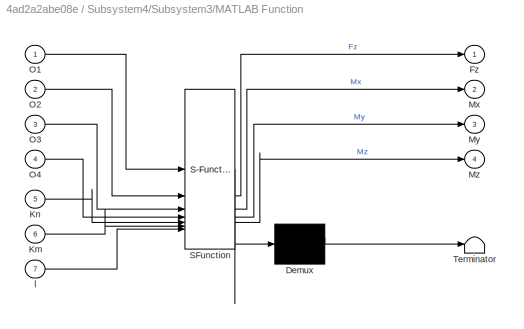
BLOCK [SubSystem] Subsystem4/Subsystem3/MATLAB Function
  ErrorFcn = Stateflow.Translate.translate
  LibrarySourceBlock = simulink/User-Defined\nFunctions/MATLAB Function
  PermitHierarchicalResolution = ExplicitOnly
  SFBlockType = MATLAB Function
  TreatAsAtomicUnit = on
BLOCK [Demux] Subsystem4/Subsystem3/MATLAB Function/ Demux 
  Outputs = 1
BLOCK [S-Function] Subsystem4/Subsystem3/MATLAB Function/ SFunction 
  EnableBusSupport = on
  FunctionName = sf_sfun
  PortCounts = [7 5]
  SFcnIsStateOwnerBlock = off
  SFunctionDeploymentMode = off
  Tag = Stateflow S-Function 2
BLOCK [Terminator] Subsystem4/Subsystem3/MATLAB Function/ Terminator 
BLOCK [Outport] Subsystem4/Subsystem3/MATLAB Function/Fz
BLOCK [Inport] Subsystem4/Subsystem3/MATLAB Function/Km
  Port = 6
BLOCK [Inport] Subsystem4/Subsystem3/MATLAB Function/Kn
  Port = 5
BLOCK [Outport] Subsystem4/Subsystem3/MATLAB Function/Mx
  Port = 2
BLOCK [Outport] Subsystem4/Subsystem3/MATLAB Function/My
  Port = 3
BLOCK [Outport] Subsystem4/Subsystem3/MATLAB Function/Mz
  Port = 4
BLOCK [Inport] Subsystem4/Subsystem3/MATLAB Function/O1
BLOCK [Inport] Subsystem4/Subsystem3/MATLAB Function/O2
  Port = 2
BLOCK [Inport] Subsystem4/Subsystem3/MATLAB Function/O3
  Port = 3
BLOCK [Inport] Subsystem4/Subsystem3/MATLAB Function/O4
  Port = 4
BLOCK [Inport] Subsystem4/Subsystem3/MATLAB Function/l
  Port = 7
BLOCK [Outport] Subsystem4/Subsystem3/Mx_b
  Port = 2
BLOCK [Outport] Subsystem4/Subsystem3/My_b
  Port = 3
BLOCK [Outport] Subsystem4/Subsystem3/Mz_b
  Port = 4
BLOCK [Inport] Subsystem4/Subsystem3/O1
BLOCK [Inport] Subsystem4/Subsystem3/O2
  Port = 2
BLOCK [Inport] Subsystem4/Subsystem3/O3
  Port = 3
BLOCK [Inport] Subsystem4/Subsystem3/O4
  Port = 4
BLOCK [Scope] Subsystem4/Subsystem3/Scope1
  Floating = off
  NumInputPorts = 1
  ScopeSpecificationString = Simulink.scopes.TimeScopeBlockCfg('CurrentConfiguration', extmgr.ConfigurationSet(extmgr.Configuration('Core','General UI',true),extmgr.Configuration('Core','Source UI',true),extmgr.Configuration('Sources','WiredSimulink',true,'DataLoggingVariableName','ScopeData31'),extmgr.Configuration('Visuals','Time Domain',true,'SerializedDisplays',{struct('MinYLimReal','-787.02391','MaxYLimReal','7083.21515'...<+1380ch>
BLOCK [Scope] Subsystem4/Subsystem3/Scope2
  Floating = off
  NumInputPorts = 1
  ScopeSpecificationString = Simulink.scopes.TimeScopeBlockCfg('CurrentConfiguration', extmgr.ConfigurationSet(extmgr.Configuration('Core','General UI',true),extmgr.Configuration('Core','Source UI',true),extmgr.Configuration('Sources','WiredSimulink',true,'DataLoggingVariableName','ScopeData32'),extmgr.Configuration('Visuals','Time Domain',true,'SerializedDisplays',{struct('MinYLimReal','-786.58332','MaxYLimReal','7079.24991'...<+1380ch>
BLOCK [Scope] Subsystem4/Subsystem3/Scope3
  Floating = off
  NumInputPorts = 1
  ScopeSpecificationString = Simulink.scopes.TimeScopeBlockCfg('CurrentConfiguration', extmgr.ConfigurationSet(extmgr.Configuration('Core','General UI',true),extmgr.Configuration('Core','Source UI',true),extmgr.Configuration('Sources','WiredSimulink',true,'DataLoggingVariableName','ScopeData33'),extmgr.Configuration('Visuals','Time Domain',true,'SerializedDisplays',{struct('MinYLimReal','-1326295.17801','MaxYLimReal','651471....<+1406ch>
BLOCK [Scope] Subsystem4/Subsystem3/Scope4
  Floating = off
  NumInputPorts = 1
  ScopeSpecificationString = Simulink.scopes.TimeScopeBlockCfg('CurrentConfiguration', extmgr.ConfigurationSet(extmgr.Configuration('Core','General UI',true),extmgr.Configuration('Core','Source UI',true),extmgr.Configuration('Sources','WiredSimulink',true,'DataLoggingVariableName','ScopeData1'),extmgr.Configuration('Visuals','Time Domain',true,'SerializedDisplays',{struct('MinYLimReal','-4955253.02745','MaxYLimReal','44597277...<+1453ch>
BLOCK [SubSystem] Subsystem4/Subsystem4
BLOCK [Constant] Subsystem4/Subsystem4/Constant
  Value = Kn
BLOCK [Constant] Subsystem4/Subsystem4/Constant1
  Value = 0
BLOCK [Constant] Subsystem4/Subsystem4/Constant2
  Value = l
BLOCK [Outport] Subsystem4/Subsystem4/Fz_b
BLOCK [Gain] Subsystem4/Subsystem4/Gain
  Gain = 2010
BLOCK [Gain] Subsystem4/Subsystem4/Gain1
  Gain = 2010
BLOCK [Gain] Subsystem4/Subsystem4/Gain2
  Gain = 2010
BLOCK [Gain] Subsystem4/Subsystem4/Gain3
  Gain = 2010
BLOCK [SubSystem] Subsystem4/Subsystem4/MATLAB Function
  ErrorFcn = Stateflow.Translate.translate
  LibrarySourceBlock = simulink/User-Defined\nFunctions/MATLAB Function
  PermitHierarchicalResolution = ExplicitOnly
  SFBlockType = MATLAB Function
  TreatAsAtomicUnit = on
BLOCK [Demux] Subsystem4/Subsystem4/MATLAB Function/ Demux 
  Outputs = 1
BLOCK [S-Function] Subsystem4/Subsystem4/MATLAB Function/ SFunction 
  EnableBusSupport = on
  FunctionName = sf_sfun
  PortCounts = [7 5]
  SFcnIsStateOwnerBlock = off
  SFunctionDeploymentMode = off
  Tag = Stateflow S-Function 4
BLOCK [Terminator] Subsystem4/Subsystem4/MATLAB Function/ Terminator 
BLOCK [Outport] Subsystem4/Subsystem4/MATLAB Function/Fz
BLOCK [Inport] Subsystem4/Subsystem4/MATLAB Function/Km
  Port = 6
BLOCK [Inport] Subsystem4/Subsystem4/MATLAB Function/Kn
  Port = 5
BLOCK [Outport] Subsystem4/Subsystem4/MATLAB Function/Mx
  Port = 2
BLOCK [Outport] Subsystem4/Subsystem4/MATLAB Function/My
  Port = 3
BLOCK [Outport] Subsystem4/Subsystem4/MATLAB Function/Mz
  Port = 4
BLOCK [Inport] Subsystem4/Subsystem4/MATLAB Function/O1
BLOCK [Inport] Subsystem4/Subsystem4/MATLAB Function/O2
  Port = 2
BLOCK [Inport] Subsystem4/Subsystem4/MATLAB Function/O3
  Port = 3
BLOCK [Inport] Subsystem4/Subsystem4/MATLAB Function/O4
  Port = 4
BLOCK [Inport] Subsystem4/Subsystem4/MATLAB Function/l
  Port = 7
BLOCK [Outport] Subsystem4/Subsystem4/Mx_b
  Port = 2
BLOCK [Outport] Subsystem4/Subsystem4/My_b
  Port = 3
BLOCK [Outport] Subsystem4/Subsystem4/Mz_b
  Port = 4
BLOCK [Inport] Subsystem4/Subsystem4/O1
BLOCK [Inport] Subsystem4/Subsystem4/O2
  Port = 2
BLOCK [Inport] Subsystem4/Subsystem4/O3
  Port = 3
BLOCK [Inport] Subsystem4/Subsystem4/O4
  Port = 4
BLOCK [Scope] Subsystem4/Subsystem4/Scope
  Floating = off
  NumInputPorts = 1
  ScopeSpecificationString = Simulink.scopes.TimeScopeBlockCfg('CurrentConfiguration', extmgr.ConfigurationSet(extmgr.Configuration('Core','General UI',true),extmgr.Configuration('Core','Source UI',true),extmgr.Configuration('Sources','WiredSimulink',true,'DataLoggingVariableName','ScopeData30'),extmgr.Configuration('Visuals','Time Domain',true,'SerializedDisplays',{struct('MinYLimReal','-1.00000','MaxYLimReal','1.00000','YLa...<+1397ch>
BLOCK [Scope] Subsystem4/Subsystem4/Scope1
  Floating = off
  NumInputPorts = 1
  ScopeSpecificationString = Simulink.scopes.TimeScopeBlockCfg('CurrentConfiguration', extmgr.ConfigurationSet(extmgr.Configuration('Core','General UI',true),extmgr.Configuration('Core','Source UI',true),extmgr.Configuration('Sources','WiredSimulink',true,'DataLoggingVariableName','ScopeData31'),extmgr.Configuration('Visuals','Time Domain',true,'SerializedDisplays',{struct('MinYLimReal','-1.00000','MaxYLimReal','1.00000','YLa...<+1397ch>
BLOCK [Scope] Subsystem4/Subsystem4/Scope2
  Floating = off
  NumInputPorts = 1
  ScopeSpecificationString = Simulink.scopes.TimeScopeBlockCfg('CurrentConfiguration', extmgr.ConfigurationSet(extmgr.Configuration('Core','General UI',true),extmgr.Configuration('Core','Source UI',true),extmgr.Configuration('Sources','WiredSimulink',true,'DataLoggingVariableName','ScopeData32'),extmgr.Configuration('Visuals','Time Domain',true,'SerializedDisplays',{struct('MinYLimReal','-651571.86271','MaxYLimReal','1367412....<+1404ch>
BLOCK [Scope] Subsystem4/Subsystem4/Scope3
  Floating = off
  NumInputPorts = 1
  ScopeSpecificationString = Simulink.scopes.TimeScopeBlockCfg('CurrentConfiguration', extmgr.ConfigurationSet(extmgr.Configuration('Core','General UI',true),extmgr.Configuration('Core','Source UI',true),extmgr.Configuration('Sources','WiredSimulink',true,'DataLoggingVariableName','ScopeData33'),extmgr.Configuration('Visuals','Time Domain',true,'SerializedDisplays',{struct('MinYLimReal','-1326295.17801','MaxYLimReal','651471....<+1406ch>
BLOCK [Scope] Subsystem4/Subsystem4/Scope4
  Floating = off
  NumInputPorts = 1
  ScopeSpecificationString = Simulink.scopes.TimeScopeBlockCfg('CurrentConfiguration', extmgr.ConfigurationSet(extmgr.Configuration('Core','General UI',true),extmgr.Configuration('Core','Source UI',true),extmgr.Configuration('Sources','WiredSimulink',true,'DataLoggingVariableName','ScopeData2'),extmgr.Configuration('Visuals','Time Domain',true,'SerializedDisplays',{struct('MinYLimReal','-538070.08475','MaxYLimReal','4842630.7...<+1412ch>
BLOCK [SubSystem] Subsystem4/Subsystem5
BLOCK [Inport] Subsystem4/Subsystem5/Fz_b
BLOCK [Gain] Subsystem4/Subsystem5/Gain
  Gain = 180/pi
BLOCK [Gain] Subsystem4/Subsystem5/Gain1
  Gain = pi/180
BLOCK [Integrator] Subsystem4/Subsystem5/Integrator
BLOCK [Integrator] Subsystem4/Subsystem5/Integrator1
BLOCK [Integrator] Subsystem4/Subsystem5/Integrator2
BLOCK [Integrator] Subsystem4/Subsystem5/Integrator3
BLOCK [Integrator] Subsystem4/Subsystem5/Integrator4
BLOCK [Integrator] Subsystem4/Subsystem5/Integrator5
BLOCK [SubSystem] Subsystem4/Subsystem5/MATLAB Function
  ErrorFcn = Stateflow.Translate.translate
  LibrarySourceBlock = simulink/User-Defined\nFunctions/MATLAB Function
  PermitHierarchicalResolution = ExplicitOnly
  SFBlockType = MATLAB Function
  TreatAsAtomicUnit = on
BLOCK [Demux] Subsystem4/Subsystem5/MATLAB Function/ Demux 
  Outputs = 1
BLOCK [S-Function] Subsystem4/Subsystem5/MATLAB Function/ SFunction 
  EnableBusSupport = on
  FunctionName = sf_sfun
  PortCounts = [4 4]
  SFcnIsStateOwnerBlock = off
  SFunctionDeploymentMode = off
  Tag = Stateflow S-Function 1
BLOCK [Terminator] Subsystem4/Subsystem5/MATLAB Function/ Terminator 
BLOCK [Inport] Subsystem4/Subsystem5/MATLAB Function/Fz_b
BLOCK [Inport] Subsystem4/Subsystem5/MATLAB Function/Phi
  Port = 2
BLOCK [Inport] Subsystem4/Subsystem5/MATLAB Function/Psi
  Port = 4
BLOCK [Inport] Subsystem4/Subsystem5/MATLAB Function/Theta
  Port = 3
BLOCK [Outport] Subsystem4/Subsystem5/MATLAB Function/r_dot
  Port = 3
BLOCK [Outport] Subsystem4/Subsystem5/MATLAB Function/u_dot
BLOCK [Outport] Subsystem4/Subsystem5/MATLAB Function/v_dot
  Port = 2
BLOCK [SubSystem] Subsystem4/Subsystem5/MATLAB Function1
  ErrorFcn = Stateflow.Translate.translate
  LibrarySourceBlock = simulink/User-Defined\nFunctions/MATLAB Function
  PermitHierarchicalResolution = ExplicitOnly
  SFBlockType = MATLAB Function
  TreatAsAtomicUnit = on
BLOCK [Demux] Subsystem4/Subsystem5/MATLAB Function1/ Demux 
  Outputs = 1
BLOCK [S-Function] Subsystem4/Subsystem5/MATLAB Function1/ SFunction 
  EnableBusSupport = on
  FunctionName = sf_sfun
  PortCounts = [1 4]
  SFcnIsStateOwnerBlock = off
  SFunctionDeploymentMode = off
  Tag = Stateflow S-Function 22
BLOCK [Terminator] Subsystem4/Subsystem5/MATLAB Function1/ Terminator 
BLOCK [Outport] Subsystem4/Subsystem5/MATLAB Function1/p_dot
BLOCK [Outport] Subsystem4/Subsystem5/MATLAB Function1/q_dot
  Port = 2
BLOCK [Outport] Subsystem4/Subsystem5/MATLAB Function1/r_dot
  Port = 3
BLOCK [Inport] Subsystem4/Subsystem5/MATLAB Function1/u
BLOCK [SubSystem] Subsystem4/Subsystem5/MATLAB Function2
  ErrorFcn = Stateflow.Translate.translate
  LibrarySourceBlock = simulink/User-Defined\nFunctions/MATLAB Function
  PermitHierarchicalResolution = ExplicitOnly
  SFBlockType = MATLAB Function
  TreatAsAtomicUnit = on
BLOCK [Demux] Subsystem4/Subsystem5/MATLAB Function2/ Demux 
  Outputs = 1
BLOCK [S-Function] Subsystem4/Subsystem5/MATLAB Function2/ SFunction 
  EnableBusSupport = on
  FunctionName = sf_sfun
  PortCounts = [1 4]
  SFcnIsStateOwnerBlock = off
  SFunctionDeploymentMode = off
  Tag = Stateflow S-Function 23
BLOCK [Terminator] Subsystem4/Subsystem5/MATLAB Function2/ Terminator 
BLOCK [Outport] Subsystem4/Subsystem5/MATLAB Function2/p_dot
BLOCK [Outport] Subsystem4/Subsystem5/MATLAB Function2/q_dot
  Port = 2
BLOCK [Outport] Subsystem4/Subsystem5/MATLAB Function2/r_dot
  Port = 3
BLOCK [Inport] Subsystem4/Subsystem5/MATLAB Function2/u
BLOCK [SubSystem] Subsystem4/Subsystem5/MATLAB Function4
  ErrorFcn = Stateflow.Translate.translate
  LibrarySourceBlock = simulink/User-Defined\nFunctions/MATLAB Function
  NameLocation = left
  PermitHierarchicalResolution = ExplicitOnly
  SFBlockType = MATLAB Function
  TreatAsAtomicUnit = on
BLOCK [Demux] Subsystem4/Subsystem5/MATLAB Function4/ Demux 
  Outputs = 1
BLOCK [S-Function] Subsystem4/Subsystem5/MATLAB Function4/ SFunction 
  EnableBusSupport = on
  FunctionName = sf_sfun
  PortCounts = [6 2]
  SFcnIsStateOwnerBlock = off
  SFunctionDeploymentMode = off
  Tag = Stateflow S-Function 12
BLOCK [Terminator] Subsystem4/Subsystem5/MATLAB Function4/ Terminator 
BLOCK [Outport] Subsystem4/Subsystem5/MATLAB Function4/Ang_acc
BLOCK [Inport] Subsystem4/Subsystem5/MATLAB Function4/J
  Port = 2
BLOCK [Inport] Subsystem4/Subsystem5/MATLAB Function4/M
BLOCK [Inport] Subsystem4/Subsystem5/MATLAB Function4/p
  Port = 3
BLOCK [Inport] Subsystem4/Subsystem5/MATLAB Function4/q
  Port = 4
BLOCK [Inport] Subsystem4/Subsystem5/MATLAB Function4/r
  Port = 5
BLOCK [Inport] Subsystem4/Subsystem5/MATLAB Function4/skew
  Port = 6
BLOCK [Inport] Subsystem4/Subsystem5/M_b
  Port = 2
BLOCK [Outport] Subsystem4/Subsystem5/Phi
BLOCK [Outport] Subsystem4/Subsystem5/Psi
  Port = 3
BLOCK [Scope] Subsystem4/Subsystem5/Scope1
  Floating = off
  NumInputPorts = 1
  ScopeSpecificationString = Simulink.scopes.TimeScopeBlockCfg('CurrentConfiguration', extmgr.ConfigurationSet(extmgr.Configuration('Core','General UI',true),extmgr.Configuration('Core','Source UI',true),extmgr.Configuration('Sources','WiredSimulink',true,'DataLoggingVariableName','ScopeData3'),extmgr.Configuration('Visuals','Time Domain',true,'SerializedDisplays',{struct('MinYLimReal','-1.00000','MaxYLimReal','1.00000','YLab...<+1393ch>
BLOCK [Scope] Subsystem4/Subsystem5/Scope10
  Floating = off
  NumInputPorts = 1
  ScopeSpecificationString = Simulink.scopes.TimeScopeBlockCfg('CurrentConfiguration', extmgr.ConfigurationSet(extmgr.Configuration('Core','General UI',true),extmgr.Configuration('Core','Source UI',true),extmgr.Configuration('Sources','WiredSimulink',true,'DataLoggingVariableName','ScopeData9'),extmgr.Configuration('Visuals','Time Domain',true,'SerializedDisplays',{struct('MinYLimReal','-109525849717496.28125','MaxYLimReal','...<+1520ch>
BLOCK [Scope] Subsystem4/Subsystem5/Scope11
  Floating = off
  NumInputPorts = 1
  ScopeSpecificationString = Simulink.scopes.TimeScopeBlockCfg('CurrentConfiguration', extmgr.ConfigurationSet(extmgr.Configuration('Core','General UI',true),extmgr.Configuration('Core','Source UI',true),extmgr.Configuration('Sources','WiredSimulink',true,'DataLoggingVariableName','ScopeData10'),extmgr.Configuration('Visuals','Time Domain',true,'SerializedDisplays',{struct('MinYLimReal','8.8','MaxYLimReal','10.8','YLabelReal'...<+1381ch>
BLOCK [Scope] Subsystem4/Subsystem5/Scope13
  Floating = off
  NumInputPorts = 1
  ScopeSpecificationString = Simulink.scopes.TimeScopeBlockCfg('CurrentConfiguration', extmgr.ConfigurationSet(extmgr.Configuration('Core','General UI',true),extmgr.Configuration('Core','Source UI',true),extmgr.Configuration('Sources','WiredSimulink',true,'DataLoggingVariableName','ScopeData12'),extmgr.Configuration('Visuals','Time Domain',true,'SerializedDisplays',{struct('MinYLimReal','-1.00000','MaxYLimReal','1.00000','YLa...<+1394ch>
BLOCK [Scope] Subsystem4/Subsystem5/Scope5
  Floating = off
  NumInputPorts = 1
  ScopeSpecificationString = Simulink.scopes.TimeScopeBlockCfg('CurrentConfiguration', extmgr.ConfigurationSet(extmgr.Configuration('Core','General UI',true),extmgr.Configuration('Core','Source UI',true),extmgr.Configuration('Sources','WiredSimulink',true,'DataLoggingVariableName','ScopeData8'),extmgr.Configuration('Visuals','Time Domain',true,'SerializedDisplays',{struct('MinYLimReal','-122688564.21917','MaxYLimReal','102585...<+1472ch>
BLOCK [SubSystem] Subsystem4/Subsystem5/Subsystem
BLOCK [DataTypeConversion] Subsystem4/Subsystem5/Subsystem/Data Type Conversion
  RndMeth = Floor
  SaturateOnIntegerOverflow = off
BLOCK [Inport] Subsystem4/Subsystem5/Subsystem/In1
BLOCK [Scope] Subsystem4/Subsystem5/Subsystem/Scope6
  Floating = off
  NumInputPorts = 1
  ScopeSpecificationString = Simulink.scopes.TimeScopeBlockCfg('CurrentConfiguration', extmgr.ConfigurationSet(extmgr.Configuration('Core','General UI',true),extmgr.Configuration('Core','Source UI',true),extmgr.Configuration('Sources','WiredSimulink',true,'DataLoggingVariableName','ScopeData16'),extmgr.Configuration('Visuals','Time Domain',true,'SerializedDisplays',{struct('MinYLimReal','-1.00000','MaxYLimReal','1.00000','YLa...<+1393ch>
BLOCK [SubSystem] Subsystem4/Subsystem5/Subsystem1
BLOCK [Outport] Subsystem4/Subsystem5/Subsystem1/Ang_acc_B
BLOCK [Constant] Subsystem4/Subsystem5/Subsystem1/Constant
  Value = J
BLOCK [Inport] Subsystem4/Subsystem5/Subsystem1/In1
BLOCK [Inport] Subsystem4/Subsystem5/Subsystem1/In3
  Port = 2
BLOCK [Inport] Subsystem4/Subsystem5/Subsystem1/In4
  Port = 3
BLOCK [Inport] Subsystem4/Subsystem5/Subsystem1/M_B
  Port = 4
BLOCK [Product] Subsystem4/Subsystem5/Subsystem1/Product
BLOCK [Product] Subsystem4/Subsystem5/Subsystem1/Product1
BLOCK [Product] Subsystem4/Subsystem5/Subsystem1/Product2
BLOCK [Product] Subsystem4/Subsystem5/Subsystem1/Product3
BLOCK [SubSystem] Subsystem4/Subsystem5/Subsystem1/Subsystem
BLOCK [Constant] Subsystem4/Subsystem5/Subsystem1/Subsystem/Constant
  Value = J
BLOCK [SubSystem] Subsystem4/Subsystem5/Subsystem1/Subsystem/MATLAB Function
  ErrorFcn = Stateflow.Translate.translate
  LibrarySourceBlock = simulink/User-Defined\nFunctions/MATLAB Function
  PermitHierarchicalResolution = ExplicitOnly
  SFBlockType = MATLAB Function
  TreatAsAtomicUnit = on
BLOCK [Demux] Subsystem4/Subsystem5/Subsystem1/Subsystem/MATLAB Function/ Demux 
  Outputs = 1
BLOCK [S-Function] Subsystem4/Subsystem5/Subsystem1/Subsystem/MATLAB Function/ SFunction 
  EnableBusSupport = on
  FunctionName = sf_sfun
  PortCounts = [3 2]
  SFcnIsStateOwnerBlock = off
  SFunctionDeploymentMode = off
  Tag = Stateflow S-Function 14
BLOCK [Terminator] Subsystem4/Subsystem5/Subsystem1/Subsystem/MATLAB Function/ Terminator 
BLOCK [Inport] Subsystem4/Subsystem5/Subsystem1/Subsystem/MATLAB Function/J
  Port = 3
BLOCK [Inport] Subsystem4/Subsystem5/Subsystem1/Subsystem/MATLAB Function/pq
BLOCK [Inport] Subsystem4/Subsystem5/Subsystem1/Subsystem/MATLAB Function/rq
  Port = 2
BLOCK [Outport] Subsystem4/Subsystem5/Subsystem1/Subsystem/MATLAB Function/y
BLOCK [SubSystem] Subsystem4/Subsystem5/Subsystem1/Subsystem/MATLAB Function1
  ErrorFcn = Stateflow.Translate.translate
  LibrarySourceBlock = simulink/User-Defined\nFunctions/MATLAB Function
  PermitHierarchicalResolution = ExplicitOnly
  SFBlockType = MATLAB Function
  TreatAsAtomicUnit = on
BLOCK [Demux] Subsystem4/Subsystem5/Subsystem1/Subsystem/MATLAB Function1/ Demux 
  Outputs = 1
BLOCK [S-Function] Subsystem4/Subsystem5/Subsystem1/Subsystem/MATLAB Function1/ SFunction 
  EnableBusSupport = on
  FunctionName = sf_sfun
  PortCounts = [3 2]
  SFcnIsStateOwnerBlock = off
  SFunctionDeploymentMode = off
  Tag = Stateflow S-Function 15
BLOCK [Terminator] Subsystem4/Subsystem5/Subsystem1/Subsystem/MATLAB Function1/ Terminator 
BLOCK [Inport] Subsystem4/Subsystem5/Subsystem1/Subsystem/MATLAB Function1/J
  Port = 3
BLOCK [Inport] Subsystem4/Subsystem5/Subsystem1/Subsystem/MATLAB Function1/pp
BLOCK [Inport] Subsystem4/Subsystem5/Subsystem1/Subsystem/MATLAB Function1/rp
  Port = 2
BLOCK [Outport] Subsystem4/Subsystem5/Subsystem1/Subsystem/MATLAB Function1/y
BLOCK [SubSystem] Subsystem4/Subsystem5/Subsystem1/Subsystem/MATLAB Function2
  ErrorFcn = Stateflow.Translate.translate
  LibrarySourceBlock = simulink/User-Defined\nFunctions/MATLAB Function
  PermitHierarchicalResolution = ExplicitOnly
  SFBlockType = MATLAB Function
  TreatAsAtomicUnit = on
BLOCK [Demux] Subsystem4/Subsystem5/Subsystem1/Subsystem/MATLAB Function2/ Demux 
  Outputs = 1
BLOCK [S-Function] Subsystem4/Subsystem5/Subsystem1/Subsystem/MATLAB Function2/ SFunction 
  EnableBusSupport = on
  FunctionName = sf_sfun
  PortCounts = [3 2]
  SFcnIsStateOwnerBlock = off
  SFunctionDeploymentMode = off
  Tag = Stateflow S-Function 16
BLOCK [Terminator] Subsystem4/Subsystem5/Subsystem1/Subsystem/MATLAB Function2/ Terminator 
BLOCK [Inport] Subsystem4/Subsystem5/Subsystem1/Subsystem/MATLAB Function2/J
  Port = 3
BLOCK [Inport] Subsystem4/Subsystem5/Subsystem1/Subsystem/MATLAB Function2/pq
BLOCK [Inport] Subsystem4/Subsystem5/Subsystem1/Subsystem/MATLAB Function2/qr
  Port = 2
BLOCK [Outport] Subsystem4/Subsystem5/Subsystem1/Subsystem/MATLAB Function2/y
BLOCK [Outport] Subsystem4/Subsystem5/Subsystem1/Subsystem/cor_x
BLOCK [Outport] Subsystem4/Subsystem5/Subsystem1/Subsystem/cor_y
  Port = 2
BLOCK [Outport] Subsystem4/Subsystem5/Subsystem1/Subsystem/cor_z
  Port = 3
BLOCK [Inport] Subsystem4/Subsystem5/Subsystem1/Subsystem/p*p
BLOCK [Inport] Subsystem4/Subsystem5/Subsystem1/Subsystem/p*q
  Port = 2
BLOCK [Inport] Subsystem4/Subsystem5/Subsystem1/Subsystem/p*r
  Port = 3
BLOCK [Inport] Subsystem4/Subsystem5/Subsystem1/Subsystem/q*r
  Port = 4
BLOCK [SubSystem] Subsystem4/Subsystem5/Subsystem1/Subsystem1
BLOCK [Outport] Subsystem4/Subsystem5/Subsystem1/Subsystem1/Ang_acc_B
BLOCK [Inport] Subsystem4/Subsystem5/Subsystem1/Subsystem1/J
  Port = 5
BLOCK [SubSystem] Subsystem4/Subsystem5/Subsystem1/Subsystem1/MATLAB Function
  ErrorFcn = Stateflow.Translate.translate
  LibrarySourceBlock = simulink/User-Defined\nFunctions/MATLAB Function
  PermitHierarchicalResolution = ExplicitOnly
  SFBlockType = MATLAB Function
  TreatAsAtomicUnit = on
BLOCK [Demux] Subsystem4/Subsystem5/Subsystem1/Subsystem1/MATLAB Function/ Demux 
  Outputs = 1
BLOCK [S-Function] Subsystem4/Subsystem5/Subsystem1/Subsystem1/MATLAB Function/ SFunction 
  EnableBusSupport = on
  FunctionName = sf_sfun
  PortCounts = [5 2]
  SFcnIsStateOwnerBlock = off
  SFunctionDeploymentMode = off
  Tag = Stateflow S-Function 17
BLOCK [Terminator] Subsystem4/Subsystem5/Subsystem1/Subsystem1/MATLAB Function/ Terminator 
BLOCK [Outport] Subsystem4/Subsystem5/Subsystem1/Subsystem1/MATLAB Function/Ang_acc_B
BLOCK [Inport] Subsystem4/Subsystem5/Subsystem1/Subsystem1/MATLAB Function/J
  Port = 5
BLOCK [Inport] Subsystem4/Subsystem5/Subsystem1/Subsystem1/MATLAB Function/M_B
  Port = 4
BLOCK [Inport] Subsystem4/Subsystem5/Subsystem1/Subsystem1/MATLAB Function/cor_x
BLOCK [Inport] Subsystem4/Subsystem5/Subsystem1/Subsystem1/MATLAB Function/cor_y
  Port = 2
BLOCK [Inport] Subsystem4/Subsystem5/Subsystem1/Subsystem1/MATLAB Function/cor_z
  Port = 3
BLOCK [Inport] Subsystem4/Subsystem5/Subsystem1/Subsystem1/M_B
  Port = 4
BLOCK [Inport] Subsystem4/Subsystem5/Subsystem1/Subsystem1/cor_x
BLOCK [Inport] Subsystem4/Subsystem5/Subsystem1/Subsystem1/cor_y
  Port = 2
BLOCK [Inport] Subsystem4/Subsystem5/Subsystem1/Subsystem1/cor_z
  Port = 3
BLOCK [SubSystem] Subsystem4/Subsystem5/Subsystem2
BLOCK [Outport] Subsystem4/Subsystem5/Subsystem2/Ang_acc_B
BLOCK [Constant] Subsystem4/Subsystem5/Subsystem2/Constant
  Value = J
BLOCK [Reference] Subsystem4/Subsystem5/Subsystem2/Convolution  REF=dspsigops/Convolution
  SourceBlock = dspsigops/Convolution
  SourceType = Convolution
BLOCK [Reference] Subsystem4/Subsystem5/Subsystem2/Convolution1  REF=dspsigops/Convolution
  SourceBlock = dspsigops/Convolution
  SourceType = Convolution
BLOCK [Reference] Subsystem4/Subsystem5/Subsystem2/Convolution2  REF=dspsigops/Convolution
  SourceBlock = dspsigops/Convolution
  SourceType = Convolution
BLOCK [Reference] Subsystem4/Subsystem5/Subsystem2/Convolution3  REF=dspsigops/Convolution
  SourceBlock = dspsigops/Convolution
  SourceType = Convolution
BLOCK [Inport] Subsystem4/Subsystem5/Subsystem2/In1
BLOCK [Inport] Subsystem4/Subsystem5/Subsystem2/In3
  Port = 2
BLOCK [Inport] Subsystem4/Subsystem5/Subsystem2/In4
  Port = 3
BLOCK [Inport] Subsystem4/Subsystem5/Subsystem2/M_B
  Port = 4
BLOCK [SubSystem] Subsystem4/Subsystem5/Subsystem2/Subsystem
BLOCK [Constant] Subsystem4/Subsystem5/Subsystem2/Subsystem/Constant
  Value = J
BLOCK [SubSystem] Subsystem4/Subsystem5/Subsystem2/Subsystem/MATLAB Function
  ErrorFcn = Stateflow.Translate.translate
  LibrarySourceBlock = simulink/User-Defined\nFunctions/MATLAB Function
  PermitHierarchicalResolution = ExplicitOnly
  SFBlockType = MATLAB Function
  TreatAsAtomicUnit = on
BLOCK [Demux] Subsystem4/Subsystem5/Subsystem2/Subsystem/MATLAB Function/ Demux 
  Outputs = 1
BLOCK [S-Function] Subsystem4/Subsystem5/Subsystem2/Subsystem/MATLAB Function/ SFunction 
  EnableBusSupport = on
  FunctionName = sf_sfun
  PortCounts = [3 2]
  SFcnIsStateOwnerBlock = off
  SFunctionDeploymentMode = off
  Tag = Stateflow S-Function 18
BLOCK [Terminator] Subsystem4/Subsystem5/Subsystem2/Subsystem/MATLAB Function/ Terminator 
BLOCK [Inport] Subsystem4/Subsystem5/Subsystem2/Subsystem/MATLAB Function/J
  Port = 3
BLOCK [Inport] Subsystem4/Subsystem5/Subsystem2/Subsystem/MATLAB Function/pq
BLOCK [Inport] Subsystem4/Subsystem5/Subsystem2/Subsystem/MATLAB Function/rq
  Port = 2
BLOCK [Outport] Subsystem4/Subsystem5/Subsystem2/Subsystem/MATLAB Function/y
BLOCK [SubSystem] Subsystem4/Subsystem5/Subsystem2/Subsystem/MATLAB Function1
  ErrorFcn = Stateflow.Translate.translate
  LibrarySourceBlock = simulink/User-Defined\nFunctions/MATLAB Function
  PermitHierarchicalResolution = ExplicitOnly
  SFBlockType = MATLAB Function
  TreatAsAtomicUnit = on
BLOCK [Demux] Subsystem4/Subsystem5/Subsystem2/Subsystem/MATLAB Function1/ Demux 
  Outputs = 1
BLOCK [S-Function] Subsystem4/Subsystem5/Subsystem2/Subsystem/MATLAB Function1/ SFunction 
  EnableBusSupport = on
  FunctionName = sf_sfun
  PortCounts = [3 2]
  SFcnIsStateOwnerBlock = off
  SFunctionDeploymentMode = off
  Tag = Stateflow S-Function 19
BLOCK [Terminator] Subsystem4/Subsystem5/Subsystem2/Subsystem/MATLAB Function1/ Terminator 
BLOCK [Inport] Subsystem4/Subsystem5/Subsystem2/Subsystem/MATLAB Function1/J
  Port = 3
BLOCK [Inport] Subsystem4/Subsystem5/Subsystem2/Subsystem/MATLAB Function1/pp
BLOCK [Inport] Subsystem4/Subsystem5/Subsystem2/Subsystem/MATLAB Function1/rp
  Port = 2
BLOCK [Outport] Subsystem4/Subsystem5/Subsystem2/Subsystem/MATLAB Function1/y
BLOCK [SubSystem] Subsystem4/Subsystem5/Subsystem2/Subsystem/MATLAB Function2
  ErrorFcn = Stateflow.Translate.translate
  LibrarySourceBlock = simulink/User-Defined\nFunctions/MATLAB Function
  PermitHierarchicalResolution = ExplicitOnly
  SFBlockType = MATLAB Function
  TreatAsAtomicUnit = on
BLOCK [Demux] Subsystem4/Subsystem5/Subsystem2/Subsystem/MATLAB Function2/ Demux 
  Outputs = 1
BLOCK [S-Function] Subsystem4/Subsystem5/Subsystem2/Subsystem/MATLAB Function2/ SFunction 
  EnableBusSupport = on
  FunctionName = sf_sfun
  PortCounts = [3 2]
  SFcnIsStateOwnerBlock = off
  SFunctionDeploymentMode = off
  Tag = Stateflow S-Function 20
BLOCK [Terminator] Subsystem4/Subsystem5/Subsystem2/Subsystem/MATLAB Function2/ Terminator 
BLOCK [Inport] Subsystem4/Subsystem5/Subsystem2/Subsystem/MATLAB Function2/J
  Port = 3
BLOCK [Inport] Subsystem4/Subsystem5/Subsystem2/Subsystem/MATLAB Function2/pq
BLOCK [Inport] Subsystem4/Subsystem5/Subsystem2/Subsystem/MATLAB Function2/qr
  Port = 2
BLOCK [Outport] Subsystem4/Subsystem5/Subsystem2/Subsystem/MATLAB Function2/y
BLOCK [Outport] Subsystem4/Subsystem5/Subsystem2/Subsystem/cor_x
BLOCK [Outport] Subsystem4/Subsystem5/Subsystem2/Subsystem/cor_y
  Port = 2
BLOCK [Outport] Subsystem4/Subsystem5/Subsystem2/Subsystem/cor_z
  Port = 3
BLOCK [Inport] Subsystem4/Subsystem5/Subsystem2/Subsystem/p*p
BLOCK [Inport] Subsystem4/Subsystem5/Subsystem2/Subsystem/p*q
  Port = 2
BLOCK [Inport] Subsystem4/Subsystem5/Subsystem2/Subsystem/p*r
  Port = 3
BLOCK [Inport] Subsystem4/Subsystem5/Subsystem2/Subsystem/q*r
  Port = 4
BLOCK [SubSystem] Subsystem4/Subsystem5/Subsystem2/Subsystem1
BLOCK [Outport] Subsystem4/Subsystem5/Subsystem2/Subsystem1/Ang_acc_B
BLOCK [Inport] Subsystem4/Subsystem5/Subsystem2/Subsystem1/J
  Port = 5
BLOCK [SubSystem] Subsystem4/Subsystem5/Subsystem2/Subsystem1/MATLAB Function
  ErrorFcn = Stateflow.Translate.translate
  LibrarySourceBlock = simulink/User-Defined\nFunctions/MATLAB Function
  PermitHierarchicalResolution = ExplicitOnly
  SFBlockType = MATLAB Function
  TreatAsAtomicUnit = on
BLOCK [Demux] Subsystem4/Subsystem5/Subsystem2/Subsystem1/MATLAB Function/ Demux 
  Outputs = 1
BLOCK [S-Function] Subsystem4/Subsystem5/Subsystem2/Subsystem1/MATLAB Function/ SFunction 
  EnableBusSupport = on
  FunctionName = sf_sfun
  PortCounts = [5 2]
  SFcnIsStateOwnerBlock = off
  SFunctionDeploymentMode = off
  Tag = Stateflow S-Function 21
BLOCK [Terminator] Subsystem4/Subsystem5/Subsystem2/Subsystem1/MATLAB Function/ Terminator 
BLOCK [Outport] Subsystem4/Subsystem5/Subsystem2/Subsystem1/MATLAB Function/Ang_acc_B
BLOCK [Inport] Subsystem4/Subsystem5/Subsystem2/Subsystem1/MATLAB Function/J
  Port = 5
BLOCK [Inport] Subsystem4/Subsystem5/Subsystem2/Subsystem1/MATLAB Function/M_B
  Port = 4
BLOCK [Inport] Subsystem4/Subsystem5/Subsystem2/Subsystem1/MATLAB Function/cor_x
BLOCK [Inport] Subsystem4/Subsystem5/Subsystem2/Subsystem1/MATLAB Function/cor_y
  Port = 2
BLOCK [Inport] Subsystem4/Subsystem5/Subsystem2/Subsystem1/MATLAB Function/cor_z
  Port = 3
BLOCK [Inport] Subsystem4/Subsystem5/Subsystem2/Subsystem1/M_B
  Port = 4
BLOCK [Inport] Subsystem4/Subsystem5/Subsystem2/Subsystem1/cor_x
BLOCK [Inport] Subsystem4/Subsystem5/Subsystem2/Subsystem1/cor_y
  Port = 2
BLOCK [Inport] Subsystem4/Subsystem5/Subsystem2/Subsystem1/cor_z
  Port = 3
BLOCK [Outport] Subsystem4/Subsystem5/Theta
  Port = 2
BLOCK [Outport] Subsystem4/Subsystem5/p
  Port = 4
BLOCK [Outport] Subsystem4/Subsystem5/q
  Port = 5
BLOCK [Outport] Subsystem4/Subsystem5/r
  Port = 6
BLOCK [Outport] Subsystem4/Theta
  Port = 2
BLOCK [Outport] Subsystem4/p
  Port = 4
BLOCK [Outport] Subsystem4/q
  Port = 5
BLOCK [Outport] Subsystem4/r
  Port = 6
BLOCK [Outport] Subsystem4/u
  Port = 13
BLOCK [Outport] Subsystem4/udot
  Port = 10
BLOCK [Outport] Subsystem4/v
  Port = 14
BLOCK [Outport] Subsystem4/vdot
  Port = 11
BLOCK [Outport] Subsystem4/w
  Port = 15
BLOCK [Outport] Subsystem4/wdot
  Port = 12
BLOCK [Outport] Subsystem4/x
  Port = 7
BLOCK [Outport] Subsystem4/y
  Port = 8
BLOCK [Outport] Subsystem4/z
  Port = 9
BLOCK [Sum] Sum1
  Inputs = |+-
BLOCK [Sum] Sum2
  Inputs = |+-
BLOCK [Sum] Sum3
  Inputs = |+-
BLOCK [Sum] Sum4
  Inputs = |+-
BLOCK [Sum] Sum5
  Inputs = |+-
BLOCK [Sum] Sum6
  Inputs = |+-
BLOCK [Sum] Sum7
  Inputs = |++
BLOCK [Sum] Sum8
  Inputs = |++
BLOCK [Scope] Theta
  Floating = off
  NumInputPorts = 1
  ScopeSpecificationString = Simulink.scopes.TimeScopeBlockCfg('CurrentConfiguration', extmgr.ConfigurationSet(extmgr.Configuration('Core','General UI',true),extmgr.Configuration('Core','Source UI',true),extmgr.Configuration('Sources','WiredSimulink',true,'DataLoggingVariableName','ScopeData9'),extmgr.Configuration('Visuals','Time Domain',true,'SerializedDisplays',{struct('MinYLimReal','-11.25859','MaxYLimReal','1.25095','YLa...<+1403ch>
BLOCK [TransferFcn] Transfer Fcn1
  Denominator = [Tau 1]
  Numerator = [K]
BLOCK [TransferFcn] Transfer Fcn2
  Denominator = [Tau 1]
  Numerator = [K]
BLOCK [TransferFcn] Transfer Fcn3
  Denominator = [Tau 1]
  Numerator = [K]
BLOCK [TransferFcn] Transfer Fcn4
  Denominator = [Tau 1]
  Numerator = [K]
  ParameterTunability = Optimized
BLOCK [Scope] p
  Floating = off
  NumInputPorts = 1
  ScopeSpecificationString = Simulink.scopes.TimeScopeBlockCfg('CurrentConfiguration', extmgr.ConfigurationSet(extmgr.Configuration('Core','General UI',true),extmgr.Configuration('Core','Source UI',true),extmgr.Configuration('Sources','WiredSimulink',true,'DataLoggingVariableName','ScopeData9'),extmgr.Configuration('Visuals','Time Domain',true,'SerializedDisplays',{struct('MinYLimReal','-0.03299','MaxYLimReal','0.29506','YLab...<+1408ch>
BLOCK [Scope] q
  Floating = off
  NumInputPorts = 1
  ScopeSpecificationString = Simulink.scopes.TimeScopeBlockCfg('CurrentConfiguration', extmgr.ConfigurationSet(extmgr.Configuration('Core','General UI',true),extmgr.Configuration('Core','Source UI',true),extmgr.Configuration('Sources','WiredSimulink',true,'DataLoggingVariableName','ScopeData10'),extmgr.Configuration('Visuals','Time Domain',true,'SerializedDisplays',{struct('MinYLimReal','-0.60783','MaxYLimReal','0.06836','YLa...<+1405ch>
BLOCK [Scope] r
  Floating = off
  NumInputPorts = 1
  ScopeSpecificationString = Simulink.scopes.TimeScopeBlockCfg('CurrentConfiguration', extmgr.ConfigurationSet(extmgr.Configuration('Core','General UI',true),extmgr.Configuration('Core','Source UI',true),extmgr.Configuration('Sources','WiredSimulink',true,'DataLoggingVariableName','ScopeData11'),extmgr.Configuration('Visuals','Time Domain',true,'SerializedDisplays',{struct('MinYLimReal','-0.3911','MaxYLimReal','3.32297','YLab...<+1402ch>
BLOCK [Scope] u
  Floating = off
  NumInputPorts = 1
  ScopeSpecificationString = Simulink.scopes.TimeScopeBlockCfg('CurrentConfiguration', extmgr.ConfigurationSet(extmgr.Configuration('Core','General UI',true),extmgr.Configuration('Core','Source UI',true),extmgr.Configuration('Sources','WiredSimulink',true,'DataLoggingVariableName','ScopeData12'),extmgr.Configuration('Visuals','Time Domain',true,'SerializedDisplays',{struct('MinYLimReal','-0.81014','MaxYLimReal','7.29129','YLa...<+1411ch>
BLOCK [Scope] u_dot
  Floating = off
  NumInputPorts = 1
  ScopeSpecificationString = Simulink.scopes.TimeScopeBlockCfg('CurrentConfiguration', extmgr.ConfigurationSet(extmgr.Configuration('Core','General UI',true),extmgr.Configuration('Core','Source UI',true),extmgr.Configuration('Sources','WiredSimulink',true,'DataLoggingVariableName','ScopeData6'),extmgr.Configuration('Visuals','Time Domain',true,'SerializedDisplays',{struct('MinYLimReal','-0.59408','MaxYLimReal','5.34673','YLab...<+1409ch>
BLOCK [Scope] v
  Floating = off
  NumInputPorts = 1
  ScopeSpecificationString = Simulink.scopes.TimeScopeBlockCfg('CurrentConfiguration', extmgr.ConfigurationSet(extmgr.Configuration('Core','General UI',true),extmgr.Configuration('Core','Source UI',true),extmgr.Configuration('Sources','WiredSimulink',true,'DataLoggingVariableName','ScopeData13'),extmgr.Configuration('Visuals','Time Domain',true,'SerializedDisplays',{struct('MinYLimReal','-0.69608','MaxYLimReal','6.26471','YLa...<+1411ch>
BLOCK [Scope] v_dot
  Floating = off
  NumInputPorts = 1
  ScopeSpecificationString = Simulink.scopes.TimeScopeBlockCfg('CurrentConfiguration', extmgr.ConfigurationSet(extmgr.Configuration('Core','General UI',true),extmgr.Configuration('Core','Source UI',true),extmgr.Configuration('Sources','WiredSimulink',true,'DataLoggingVariableName','ScopeData7'),extmgr.Configuration('Visuals','Time Domain',true,'SerializedDisplays',{struct('MinYLimReal','-0.24119','MaxYLimReal','2.17069','YLab...<+1407ch>
BLOCK [Scope] w
  Floating = off
  NumInputPorts = 1
  ScopeSpecificationString = Simulink.scopes.TimeScopeBlockCfg('CurrentConfiguration', extmgr.ConfigurationSet(extmgr.Configuration('Core','General UI',true),extmgr.Configuration('Core','Source UI',true),extmgr.Configuration('Sources','WiredSimulink',true,'DataLoggingVariableName','ScopeData14'),extmgr.Configuration('Visuals','Time Domain',true,'SerializedDisplays',{struct('MinYLimReal','-0.30983','MaxYLimReal','1.03356','YLa...<+1409ch>
BLOCK [Scope] w_dot
  Floating = off
  NumInputPorts = 1
  ScopeSpecificationString = Simulink.scopes.TimeScopeBlockCfg('CurrentConfiguration', extmgr.ConfigurationSet(extmgr.Configuration('Core','General UI',true),extmgr.Configuration('Core','Source UI',true),extmgr.Configuration('Sources','WiredSimulink',true,'DataLoggingVariableName','ScopeData8'),extmgr.Configuration('Visuals','Time Domain',true,'SerializedDisplays',{struct('MinYLimReal','-62.18845','MaxYLimReal','17.79872','YL...<+1412ch>
BLOCK [Scope] x
  Floating = off
  NumInputPorts = 1
  ScopeSpecificationString = Simulink.scopes.TimeScopeBlockCfg('CurrentConfiguration', extmgr.ConfigurationSet(extmgr.Configuration('Core','General UI',true),extmgr.Configuration('Core','Source UI',true),extmgr.Configuration('Sources','WiredSimulink',true,'DataLoggingVariableName','ScopeData2'),extmgr.Configuration('Visuals','Time Domain',true,'SerializedDisplays',{struct('MinYLimReal','-4.29264','MaxYLimReal','38.63379','YLa...<+1411ch>
BLOCK [Scope] y
  Floating = off
  NumInputPorts = 1
  ScopeSpecificationString = Simulink.scopes.TimeScopeBlockCfg('CurrentConfiguration', extmgr.ConfigurationSet(extmgr.Configuration('Core','General UI',true),extmgr.Configuration('Core','Source UI',true),extmgr.Configuration('Sources','WiredSimulink',true,'DataLoggingVariableName','ScopeData3'),extmgr.Configuration('Visuals','Time Domain',true,'SerializedDisplays',{struct('MinYLimReal','-3.07758','MaxYLimReal','27.69823','YLa...<+1413ch>
BLOCK [Scope] z
  Floating = off
  NumInputPorts = 1
  ScopeSpecificationString = Simulink.scopes.TimeScopeBlockCfg('CurrentConfiguration', extmgr.ConfigurationSet(extmgr.Configuration('Core','General UI',true),extmgr.Configuration('Core','Source UI',true),extmgr.Configuration('Sources','WiredSimulink',true,'DataLoggingVariableName','ScopeData4'),extmgr.Configuration('Visuals','Time Domain',true,'SerializedDisplays',{struct('MinYLimReal','-0.49534','MaxYLimReal','2.80572','YLab...<+1408ch>
ANNOTATION (root): Motor Angular Speed Squared
ANNOTATION (root): Duty ratio
ANNOTATION (root): G(S) = Om(s)/V(s)
ANNOTATION (root): Motor_1
ANNOTATION (root): Motor_2
ANNOTATION (root): Motor_3
ANNOTATION (root): Motor_4
ANNOTATION (root): Omega_1
ANNOTATION (root): Omega_2
ANNOTATION (root): Omega_3
ANNOTATION (root): Omega_4
ANNOTATION (root): Outer Loop
ANNOTATION (root): Phi_cmd
ANNOTATION (root): Psi_speed_cmd
ANNOTATION (root): Target_P
ANNOTATION (root): Theta_cmd
ANNOTATION (root): Throttle_cmd
ANNOTATION (root): Thrust_compensation
ANNOTATION Subsystem: 160
ANNOTATION Subsystem: PWM_M1
ANNOTATION Subsystem: PWM_M2
ANNOTATION Subsystem: PWM_M3
ANNOTATION Subsystem: PWM_M4
ANNOTATION Subsystem4/Subsystem2/Subsystem2: p*p
ANNOTATION Subsystem4/Subsystem2/Subsystem2: p*q
ANNOTATION Subsystem4/Subsystem2/Subsystem2: p*r
ANNOTATION Subsystem4/Subsystem2/Subsystem2: r*q
ANNOTATION Subsystem4/Subsystem5/Subsystem1: p*p
ANNOTATION Subsystem4/Subsystem5/Subsystem1: p*q
ANNOTATION Subsystem4/Subsystem5/Subsystem1: p*r
ANNOTATION Subsystem4/Subsystem5/Subsystem1: r*q
ANNOTATION Subsystem4/Subsystem5/Subsystem2: p*p
ANNOTATION Subsystem4/Subsystem5/Subsystem2: p*q
ANNOTATION Subsystem4/Subsystem5/Subsystem2: p*r
ANNOTATION Subsystem4/Subsystem5/Subsystem2: r*q
LINE Gain10:1 -> Psi:1
NET Gain1:1 -> Scope1:1, Sum3:1
NET Gain2:1 -> Scope2:1, Sum1:1
LINE Gain3:1 -> Saturation:1
LINE Gain4:1 -> Saturation1:1
LINE Gain5:1 -> Saturation2:1
LINE Gain6:1 -> Saturation3:1
LINE Gain7:1 -> Integrator:1
LINE Gain8:1 -> Phi:1
LINE Gain9:1 -> Theta:1
NET Integrator:1 -> Scope3:1, Sum2:1
NET MATLAB Function:1 -> Scope11:1, Sum8:2
NET PID Controller1:1 -> Scope7:1, Sum5:1
NET PID Controller2:1 -> Scope8:1, Sum6:1
NET PID Controller3:1 -> Scope17:1, Subsystem:3
NET PID Controller4:1 -> Scope16:1, Subsystem:2
NET PID Controller5:1 -> Scope18:1, Subsystem:4
NET PID Controller:1 -> Scope6:1, Sum4:1
NET Saturation1:1 -> Scope30:1, Transfer Fcn1:1
NET Saturation2:1 -> Scope31:1, Transfer Fcn2:1
NET Saturation3:1 -> Scope32:1, Transfer Fcn3:1
NET Saturation:1 -> Scope9:1, Transfer Fcn4:1
LINE Step1:1 -> Gain1:1
LINE Step2:1 -> Gain2:1
LINE Step3:1 -> Gain7:1
NET Step:1 -> MATLAB Function:3, Scope12:1
NET Subsystem/In1:1 -> Subsystem/Scope2:1, Subsystem/Sum6:2, Subsystem/Sum7:2, Subsystem/Sum8:2, Subsystem/Sum9:2
NET Subsystem/In2:1 -> Subsystem/Scope3:1, Subsystem/Sum6:3, Subsystem/Sum7:3, Subsystem/Sum8:3, Subsystem/Sum9:3
NET Subsystem/In3:1 -> Subsystem/Scope4:1, Subsystem/Sum6:4, Subsystem/Sum7:4, Subsystem/Sum8:4, Subsystem/Sum9:4
NET Subsystem/Sum6:1 -> Subsystem/Out1:1, Subsystem/Scope1:1
LINE Subsystem/Sum7:1 -> Subsystem/Out3:1
LINE Subsystem/Sum8:1 -> Subsystem/Out2:1
LINE Subsystem/Sum9:1 -> Subsystem/Out4:1
NET Subsystem/y:1 -> Subsystem/Scope:1, Subsystem/Sum6:1, Subsystem/Sum7:1, Subsystem/Sum8:1, Subsystem/Sum9:1
LINE Subsystem4/O1:1 -> Subsystem4/Subsystem3:1
LINE Subsystem4/O2:1 -> Subsystem4/Subsystem3:2
LINE Subsystem4/O3:1 -> Subsystem4/Subsystem3:3
LINE Subsystem4/O4:1 -> Subsystem4/Subsystem3:4
LINE Subsystem4/Subsystem1/MATLAB Function1:1 -> Subsystem4/Subsystem1/M_b:1
LINE Subsystem4/Subsystem1/Mx_b:1 -> Subsystem4/Subsystem1/MATLAB Function1:1
LINE Subsystem4/Subsystem1/My_b:1 -> Subsystem4/Subsystem1/MATLAB Function1:2
LINE Subsystem4/Subsystem1/Mz_b:1 -> Subsystem4/Subsystem1/MATLAB Function1:3
LINE Subsystem4/Subsystem1:1 -> Subsystem4/Subsystem2:2
NET Subsystem4/Subsystem2/Constant1:1 -> Subsystem4/Subsystem2/MATLAB Function3:1, Subsystem4/Subsystem2/MATLAB Function5:1
NET Subsystem4/Subsystem2/Constant4:1 -> Subsystem4/Subsystem2/MATLAB Function2:1, Subsystem4/Subsystem2/MATLAB Function5:3
NET Subsystem4/Subsystem2/Constant5:1 -> Subsystem4/Subsystem2/MATLAB Function2:2, Subsystem4/Subsystem2/MATLAB Function3:2, Subsystem4/Subsystem2/MATLAB Function5:2
LINE Subsystem4/Subsystem2/Constant:1 -> Subsystem4/Subsystem2/MATLAB Function4:2
LINE Subsystem4/Subsystem2/Convolution1:1 -> Subsystem4/Subsystem2/MATLAB Function3:3
LINE Subsystem4/Subsystem2/Convolution2:1 -> Subsystem4/Subsystem2/MATLAB Function5:4
LINE Subsystem4/Subsystem2/Convolution:1 -> Subsystem4/Subsystem2/MATLAB Function2:3
LINE Subsystem4/Subsystem2/Fz_b:1 -> Subsystem4/Subsystem2/MATLAB Function:1
LINE Subsystem4/Subsystem2/Gain1:1 -> Subsystem4/Subsystem2/MATLAB Function4:1
NET Subsystem4/Subsystem2/Integrator10:1 -> Subsystem4/Subsystem2/Convolution2:1, Subsystem4/Subsystem2/Convolution2:2, Subsystem4/Subsystem2/Integrator11:1, Subsystem4/Subsystem2/w:1
LINE Subsystem4/Subsystem2/Integrator11:1 -> Subsystem4/Subsystem2/z:1
NET Subsystem4/Subsystem2/Integrator1:1 -> Subsystem4/Subsystem2/Integrator4:1, Subsystem4/Subsystem2/MATLAB Function1:2, Subsystem4/Subsystem2/MATLAB Function4:4, Subsystem4/Subsystem2/q:1
NET Subsystem4/Subsystem2/Integrator2:1 -> Subsystem4/Subsystem2/Integrator5:1, Subsystem4/Subsystem2/MATLAB Function1:3, Subsystem4/Subsystem2/MATLAB Function4:5, Subsystem4/Subsystem2/r:1
NET Subsystem4/Subsystem2/Integrator3:1 -> Subsystem4/Subsystem2/MATLAB Function2:4, Subsystem4/Subsystem2/MATLAB Function3:4, Subsystem4/Subsystem2/MATLAB Function5:5, Subsystem4/Subsystem2/MATLAB Function6:2, Subsystem4/Subsystem2/MATLAB Function:2, Subsystem4/Subsystem2/Phi:1
NET Subsystem4/Subsystem2/Integrator4:1 -> Subsystem4/Subsystem2/MATLAB Function2:5, Subsystem4/Subsystem2/MATLAB Function3:5, Subsystem4/Subsystem2/MATLAB Function5:6, Subsystem4/Subsystem2/MATLAB Function6:3, Subsystem4/Subsystem2/MATLAB Function:3, Subsystem4/Subsystem2/Theta:1
NET Subsystem4/Subsystem2/Integrator5:1 -> Subsystem4/Subsystem2/MATLAB Function:4, Subsystem4/Subsystem2/Psi:1
NET Subsystem4/Subsystem2/Integrator6:1 -> Subsystem4/Subsystem2/Convolution:1, Subsystem4/Subsystem2/Convolution:2, Subsystem4/Subsystem2/Integrator7:1, Subsystem4/Subsystem2/u:1
LINE Subsystem4/Subsystem2/Integrator7:1 -> Subsystem4/Subsystem2/x:1
NET Subsystem4/Subsystem2/Integrator8:1 -> Subsystem4/Subsystem2/Convolution1:1, Subsystem4/Subsystem2/Convolution1:2, Subsystem4/Subsystem2/Integrator9:1, Subsystem4/Subsystem2/v:1
LINE Subsystem4/Subsystem2/Integrator9:1 -> Subsystem4/Subsystem2/y:1
NET Subsystem4/Subsystem2/Integrator:1 -> Subsystem4/Subsystem2/Integrator3:1, Subsystem4/Subsystem2/MATLAB Function1:1, Subsystem4/Subsystem2/MATLAB Function4:3, Subsystem4/Subsystem2/p:1
LINE Subsystem4/Subsystem2/MATLAB Function1:1 -> Subsystem4/Subsystem2/MATLAB Function4:6
LINE Subsystem4/Subsystem2/MATLAB Function2:1 -> Subsystem4/Subsystem2/Sum:2
LINE Subsystem4/Subsystem2/MATLAB Function3:1 -> Subsystem4/Subsystem2/Sum1:2
LINE Subsystem4/Subsystem2/MATLAB Function4:1 -> Subsystem4/Subsystem2/MATLAB Function6:1
LINE Subsystem4/Subsystem2/MATLAB Function5:1 -> Subsystem4/Subsystem2/Sum2:2
LINE Subsystem4/Subsystem2/MATLAB Function6:1 -> Subsystem4/Subsystem2/Integrator:1
LINE Subsystem4/Subsystem2/MATLAB Function6:2 -> Subsystem4/Subsystem2/Integrator1:1
LINE Subsystem4/Subsystem2/MATLAB Function6:3 -> Subsystem4/Subsystem2/Integrator2:1
LINE Subsystem4/Subsystem2/MATLAB Function:1 -> Subsystem4/Subsystem2/Sum:1
LINE Subsystem4/Subsystem2/MATLAB Function:2 -> Subsystem4/Subsystem2/Sum1:1
LINE Subsystem4/Subsystem2/MATLAB Function:3 -> Subsystem4/Subsystem2/Sum2:1
LINE Subsystem4/Subsystem2/M_b:1 -> Subsystem4/Subsystem2/Gain1:1
LINE Subsystem4/Subsystem2/Subsystem2/Constant:1 -> Subsystem4/Subsystem2/Subsystem2/Subsystem1:5
LINE Subsystem4/Subsystem2/Subsystem2/Convolution1:1 -> Subsystem4/Subsystem2/Subsystem2/Subsystem:2
LINE Subsystem4/Subsystem2/Subsystem2/Convolution2:1 -> Subsystem4/Subsystem2/Subsystem2/Subsystem:3
LINE Subsystem4/Subsystem2/Subsystem2/Convolution3:1 -> Subsystem4/Subsystem2/Subsystem2/Subsystem:4
LINE Subsystem4/Subsystem2/Subsystem2/Convolution:1 -> Subsystem4/Subsystem2/Subsystem2/Subsystem:1
NET Subsystem4/Subsystem2/Subsystem2/In1:1 -> Subsystem4/Subsystem2/Subsystem2/Convolution1:1, Subsystem4/Subsystem2/Subsystem2/Convolution2:1, Subsystem4/Subsystem2/Subsystem2/Convolution:1, Subsystem4/Subsystem2/Subsystem2/Convolution:2
NET Subsystem4/Subsystem2/Subsystem2/In3:1 -> Subsystem4/Subsystem2/Subsystem2/Convolution1:2, Subsystem4/Subsystem2/Subsystem2/Convolution3:2
NET Subsystem4/Subsystem2/Subsystem2/In4:1 -> Subsystem4/Subsystem2/Subsystem2/Convolution2:2, Subsystem4/Subsystem2/Subsystem2/Convolution3:1
LINE Subsystem4/Subsystem2/Subsystem2/M_B:1 -> Subsystem4/Subsystem2/Subsystem2/Subsystem1:4
NET Subsystem4/Subsystem2/Subsystem2/Subsystem/Constant:1 -> Subsystem4/Subsystem2/Subsystem2/Subsystem/MATLAB Function1:3, Subsystem4/Subsystem2/Subsystem2/Subsystem/MATLAB Function2:3, Subsystem4/Subsystem2/Subsystem2/Subsystem/MATLAB Function:3
LINE Subsystem4/Subsystem2/Subsystem2/Subsystem/MATLAB Function1:1 -> Subsystem4/Subsystem2/Subsystem2/Subsystem/cor_y:1
LINE Subsystem4/Subsystem2/Subsystem2/Subsystem/MATLAB Function2:1 -> Subsystem4/Subsystem2/Subsystem2/Subsystem/cor_z:1
LINE Subsystem4/Subsystem2/Subsystem2/Subsystem/MATLAB Function:1 -> Subsystem4/Subsystem2/Subsystem2/Subsystem/cor_x:1
LINE Subsystem4/Subsystem2/Subsystem2/Subsystem/p*p:1 -> Subsystem4/Subsystem2/Subsystem2/Subsystem/MATLAB Function1:1
NET Subsystem4/Subsystem2/Subsystem2/Subsystem/p*q:1 -> Subsystem4/Subsystem2/Subsystem2/Subsystem/MATLAB Function2:1, Subsystem4/Subsystem2/Subsystem2/Subsystem/MATLAB Function:2
NET Subsystem4/Subsystem2/Subsystem2/Subsystem/p*r:1 -> Subsystem4/Subsystem2/Subsystem2/Subsystem/MATLAB Function1:2, Subsystem4/Subsystem2/Subsystem2/Subsystem/MATLAB Function2:2
LINE Subsystem4/Subsystem2/Subsystem2/Subsystem/q*r:1 -> Subsystem4/Subsystem2/Subsystem2/Subsystem/MATLAB Function:1
LINE Subsystem4/Subsystem2/Subsystem2/Subsystem1/J:1 -> Subsystem4/Subsystem2/Subsystem2/Subsystem1/MATLAB Function:5
LINE Subsystem4/Subsystem2/Subsystem2/Subsystem1/MATLAB Function:1 -> Subsystem4/Subsystem2/Subsystem2/Subsystem1/Ang_acc_B:1
LINE Subsystem4/Subsystem2/Subsystem2/Subsystem1/M_B:1 -> Subsystem4/Subsystem2/Subsystem2/Subsystem1/MATLAB Function:4
LINE Subsystem4/Subsystem2/Subsystem2/Subsystem1/cor_x:1 -> Subsystem4/Subsystem2/Subsystem2/Subsystem1/MATLAB Function:1
LINE Subsystem4/Subsystem2/Subsystem2/Subsystem1/cor_y:1 -> Subsystem4/Subsystem2/Subsystem2/Subsystem1/MATLAB Function:2
LINE Subsystem4/Subsystem2/Subsystem2/Subsystem1/cor_z:1 -> Subsystem4/Subsystem2/Subsystem2/Subsystem1/MATLAB Function:3
LINE Subsystem4/Subsystem2/Subsystem2/Subsystem1:1 -> Subsystem4/Subsystem2/Subsystem2/Ang_acc_B:1
LINE Subsystem4/Subsystem2/Subsystem2/Subsystem:1 -> Subsystem4/Subsystem2/Subsystem2/Subsystem1:1
LINE Subsystem4/Subsystem2/Subsystem2/Subsystem:2 -> Subsystem4/Subsystem2/Subsystem2/Subsystem1:2
LINE Subsystem4/Subsystem2/Subsystem2/Subsystem:3 -> Subsystem4/Subsystem2/Subsystem2/Subsystem1:3
NET Subsystem4/Subsystem2/Sum1:1 -> Subsystem4/Subsystem2/Integrator8:1, Subsystem4/Subsystem2/vdot:1
NET Subsystem4/Subsystem2/Sum2:1 -> Subsystem4/Subsystem2/Integrator10:1, Subsystem4/Subsystem2/wdot:1
NET Subsystem4/Subsystem2/Sum:1 -> Subsystem4/Subsystem2/Integrator6:1, Subsystem4/Subsystem2/udot:1
LINE Subsystem4/Subsystem2:1 -> Subsystem4/Phi:1
LINE Subsystem4/Subsystem2:10 -> Subsystem4/udot:1
LINE Subsystem4/Subsystem2:11 -> Subsystem4/vdot:1
LINE Subsystem4/Subsystem2:12 -> Subsystem4/wdot:1
LINE Subsystem4/Subsystem2:13 -> Subsystem4/u:1
LINE Subsystem4/Subsystem2:14 -> Subsystem4/v:1
LINE Subsystem4/Subsystem2:15 -> Subsystem4/w:1
LINE Subsystem4/Subsystem2:2 -> Subsystem4/Theta:1
LINE Subsystem4/Subsystem2:3 -> Subsystem4/Psi:1
LINE Subsystem4/Subsystem2:4 -> Subsystem4/p:1
LINE Subsystem4/Subsystem2:5 -> Subsystem4/q:1
LINE Subsystem4/Subsystem2:6 -> Subsystem4/r:1
LINE Subsystem4/Subsystem2:7 -> Subsystem4/x:1
LINE Subsystem4/Subsystem2:8 -> Subsystem4/y:1
LINE Subsystem4/Subsystem2:9 -> Subsystem4/z:1
LINE Subsystem4/Subsystem3/Constant1:1 -> Subsystem4/Subsystem3/MATLAB Function:6
LINE Subsystem4/Subsystem3/Constant2:1 -> Subsystem4/Subsystem3/MATLAB Function:7
LINE Subsystem4/Subsystem3/Constant:1 -> Subsystem4/Subsystem3/MATLAB Function:5
LINE Subsystem4/Subsystem3/Convolution1:1 -> Subsystem4/Subsystem3/MATLAB Function:3
LINE Subsystem4/Subsystem3/Convolution2:1 -> Subsystem4/Subsystem3/MATLAB Function:4
LINE Subsystem4/Subsystem3/Convolution3:1 -> Subsystem4/Subsystem3/MATLAB Function:1
NET Subsystem4/Subsystem3/Convolution:1 -> Subsystem4/Subsystem3/MATLAB Function:2, Subsystem4/Subsystem3/Scope4:1
LINE Subsystem4/Subsystem3/MATLAB Function:1 -> Subsystem4/Subsystem3/Fz_b:1
LINE Subsystem4/Subsystem3/MATLAB Function:2 -> Subsystem4/Subsystem3/Mx_b:1
LINE Subsystem4/Subsystem3/MATLAB Function:3 -> Subsystem4/Subsystem3/My_b:1
LINE Subsystem4/Subsystem3/MATLAB Function:4 -> Subsystem4/Subsystem3/Mz_b:1
NET Subsystem4/Subsystem3/O1:1 -> Subsystem4/Subsystem3/Convolution3:1, Subsystem4/Subsystem3/Convolution3:2
NET Subsystem4/Subsystem3/O2:1 -> Subsystem4/Subsystem3/Convolution:1, Subsystem4/Subsystem3/Convolution:2, Subsystem4/Subsystem3/Scope1:1
NET Subsystem4/Subsystem3/O3:1 -> Subsystem4/Subsystem3/Convolution1:1, Subsystem4/Subsystem3/Convolution1:2, Subsystem4/Subsystem3/Scope2:1
NET Subsystem4/Subsystem3/O4:1 -> Subsystem4/Subsystem3/Convolution2:1, Subsystem4/Subsystem3/Convolution2:2, Subsystem4/Subsystem3/Scope3:1
LINE Subsystem4/Subsystem3:1 -> Subsystem4/Subsystem2:1
LINE Subsystem4/Subsystem3:2 -> Subsystem4/Subsystem1:1
LINE Subsystem4/Subsystem3:3 -> Subsystem4/Subsystem1:2
LINE Subsystem4/Subsystem3:4 -> Subsystem4/Subsystem1:3
LINE Subsystem4/Subsystem4/Constant1:1 -> Subsystem4/Subsystem4/MATLAB Function:6
LINE Subsystem4/Subsystem4/Constant2:1 -> Subsystem4/Subsystem4/MATLAB Function:7
LINE Subsystem4/Subsystem4/Constant:1 -> Subsystem4/Subsystem4/MATLAB Function:5
LINE Subsystem4/Subsystem4/Gain1:1 -> Subsystem4/Subsystem4/MATLAB Function:3
LINE Subsystem4/Subsystem4/Gain2:1 -> Subsystem4/Subsystem4/MATLAB Function:4
LINE Subsystem4/Subsystem4/Gain3:1 -> Subsystem4/Subsystem4/MATLAB Function:1
NET Subsystem4/Subsystem4/Gain:1 -> Subsystem4/Subsystem4/MATLAB Function:2, Subsystem4/Subsystem4/Scope4:1
LINE Subsystem4/Subsystem4/MATLAB Function:1 -> Subsystem4/Subsystem4/Fz_b:1
LINE Subsystem4/Subsystem4/MATLAB Function:2 -> Subsystem4/Subsystem4/Mx_b:1
LINE Subsystem4/Subsystem4/MATLAB Function:3 -> Subsystem4/Subsystem4/My_b:1
LINE Subsystem4/Subsystem4/MATLAB Function:4 -> Subsystem4/Subsystem4/Mz_b:1
NET Subsystem4/Subsystem4/O1:1 -> Subsystem4/Subsystem4/Gain3:1, Subsystem4/Subsystem4/Scope:1
NET Subsystem4/Subsystem4/O2:1 -> Subsystem4/Subsystem4/Gain:1, Subsystem4/Subsystem4/Scope1:1
NET Subsystem4/Subsystem4/O3:1 -> Subsystem4/Subsystem4/Gain1:1, Subsystem4/Subsystem4/Scope2:1
NET Subsystem4/Subsystem4/O4:1 -> Subsystem4/Subsystem4/Gain2:1, Subsystem4/Subsystem4/Scope3:1
LINE Subsystem4/Subsystem5/Gain1:1 -> Subsystem4/Subsystem5/Subsystem1:4
LINE Subsystem4/Subsystem5/Gain:1 -> Subsystem4/Subsystem5/Scope1:1
NET Subsystem4/Subsystem5/Integrator1:1 -> Subsystem4/Subsystem5/Integrator4:1, Subsystem4/Subsystem5/q:1
NET Subsystem4/Subsystem5/Integrator2:1 -> Subsystem4/Subsystem5/Integrator5:1, Subsystem4/Subsystem5/r:1
NET Subsystem4/Subsystem5/Integrator3:1 -> Subsystem4/Subsystem5/Gain:1, Subsystem4/Subsystem5/Phi:1
NET Subsystem4/Subsystem5/Integrator4:1 -> Subsystem4/Subsystem5/Subsystem:1, Subsystem4/Subsystem5/Theta:1
LINE Subsystem4/Subsystem5/Integrator5:1 -> Subsystem4/Subsystem5/Psi:1
NET Subsystem4/Subsystem5/Integrator:1 -> Subsystem4/Subsystem5/Integrator3:1, Subsystem4/Subsystem5/p:1
LINE Subsystem4/Subsystem5/MATLAB Function1:1 -> Subsystem4/Subsystem5/Integrator:1
LINE Subsystem4/Subsystem5/MATLAB Function1:2 -> Subsystem4/Subsystem5/Integrator1:1
LINE Subsystem4/Subsystem5/MATLAB Function1:3 -> Subsystem4/Subsystem5/Integrator2:1
LINE Subsystem4/Subsystem5/M_b:1 -> Subsystem4/Subsystem5/Gain1:1
LINE Subsystem4/Subsystem5/Subsystem/In1:1 -> Subsystem4/Subsystem5/Subsystem/Scope6:1
LINE Subsystem4/Subsystem5/Subsystem1/Constant:1 -> Subsystem4/Subsystem5/Subsystem1/Subsystem1:5
NET Subsystem4/Subsystem5/Subsystem1/In1:1 -> Subsystem4/Subsystem5/Subsystem1/Product1:1, Subsystem4/Subsystem5/Subsystem1/Product2:1, Subsystem4/Subsystem5/Subsystem1/Product:1, Subsystem4/Subsystem5/Subsystem1/Product:2
NET Subsystem4/Subsystem5/Subsystem1/In3:1 -> Subsystem4/Subsystem5/Subsystem1/Product1:2, Subsystem4/Subsystem5/Subsystem1/Product3:2
NET Subsystem4/Subsystem5/Subsystem1/In4:1 -> Subsystem4/Subsystem5/Subsystem1/Product2:2, Subsystem4/Subsystem5/Subsystem1/Product3:1
LINE Subsystem4/Subsystem5/Subsystem1/M_B:1 -> Subsystem4/Subsystem5/Subsystem1/Subsystem1:4
LINE Subsystem4/Subsystem5/Subsystem1/Product1:1 -> Subsystem4/Subsystem5/Subsystem1/Subsystem:2
LINE Subsystem4/Subsystem5/Subsystem1/Product2:1 -> Subsystem4/Subsystem5/Subsystem1/Subsystem:3
LINE Subsystem4/Subsystem5/Subsystem1/Product3:1 -> Subsystem4/Subsystem5/Subsystem1/Subsystem:4
LINE Subsystem4/Subsystem5/Subsystem1/Product:1 -> Subsystem4/Subsystem5/Subsystem1/Subsystem:1
NET Subsystem4/Subsystem5/Subsystem1/Subsystem/Constant:1 -> Subsystem4/Subsystem5/Subsystem1/Subsystem/MATLAB Function1:3, Subsystem4/Subsystem5/Subsystem1/Subsystem/MATLAB Function2:3, Subsystem4/Subsystem5/Subsystem1/Subsystem/MATLAB Function:3
LINE Subsystem4/Subsystem5/Subsystem1/Subsystem/MATLAB Function1:1 -> Subsystem4/Subsystem5/Subsystem1/Subsystem/cor_y:1
LINE Subsystem4/Subsystem5/Subsystem1/Subsystem/MATLAB Function2:1 -> Subsystem4/Subsystem5/Subsystem1/Subsystem/cor_z:1
LINE Subsystem4/Subsystem5/Subsystem1/Subsystem/MATLAB Function:1 -> Subsystem4/Subsystem5/Subsystem1/Subsystem/cor_x:1
LINE Subsystem4/Subsystem5/Subsystem1/Subsystem/p*p:1 -> Subsystem4/Subsystem5/Subsystem1/Subsystem/MATLAB Function1:1
NET Subsystem4/Subsystem5/Subsystem1/Subsystem/p*q:1 -> Subsystem4/Subsystem5/Subsystem1/Subsystem/MATLAB Function2:1, Subsystem4/Subsystem5/Subsystem1/Subsystem/MATLAB Function:2
NET Subsystem4/Subsystem5/Subsystem1/Subsystem/p*r:1 -> Subsystem4/Subsystem5/Subsystem1/Subsystem/MATLAB Function1:2, Subsystem4/Subsystem5/Subsystem1/Subsystem/MATLAB Function2:2
LINE Subsystem4/Subsystem5/Subsystem1/Subsystem/q*r:1 -> Subsystem4/Subsystem5/Subsystem1/Subsystem/MATLAB Function:1
LINE Subsystem4/Subsystem5/Subsystem1/Subsystem1/J:1 -> Subsystem4/Subsystem5/Subsystem1/Subsystem1/MATLAB Function:5
LINE Subsystem4/Subsystem5/Subsystem1/Subsystem1/MATLAB Function:1 -> Subsystem4/Subsystem5/Subsystem1/Subsystem1/Ang_acc_B:1
LINE Subsystem4/Subsystem5/Subsystem1/Subsystem1/M_B:1 -> Subsystem4/Subsystem5/Subsystem1/Subsystem1/MATLAB Function:4
LINE Subsystem4/Subsystem5/Subsystem1/Subsystem1/cor_x:1 -> Subsystem4/Subsystem5/Subsystem1/Subsystem1/MATLAB Function:1
LINE Subsystem4/Subsystem5/Subsystem1/Subsystem1/cor_y:1 -> Subsystem4/Subsystem5/Subsystem1/Subsystem1/MATLAB Function:2
LINE Subsystem4/Subsystem5/Subsystem1/Subsystem1/cor_z:1 -> Subsystem4/Subsystem5/Subsystem1/Subsystem1/MATLAB Function:3
LINE Subsystem4/Subsystem5/Subsystem1/Subsystem1:1 -> Subsystem4/Subsystem5/Subsystem1/Ang_acc_B:1
LINE Subsystem4/Subsystem5/Subsystem1/Subsystem:1 -> Subsystem4/Subsystem5/Subsystem1/Subsystem1:1
LINE Subsystem4/Subsystem5/Subsystem1/Subsystem:2 -> Subsystem4/Subsystem5/Subsystem1/Subsystem1:2
LINE Subsystem4/Subsystem5/Subsystem1/Subsystem:3 -> Subsystem4/Subsystem5/Subsystem1/Subsystem1:3
LINE Subsystem4/Subsystem5/Subsystem1:1 -> Subsystem4/Subsystem5/MATLAB Function1:1
LINE Subsystem4/Subsystem5/Subsystem2/Constant:1 -> Subsystem4/Subsystem5/Subsystem2/Subsystem1:5
LINE Subsystem4/Subsystem5/Subsystem2/Convolution1:1 -> Subsystem4/Subsystem5/Subsystem2/Subsystem:2
LINE Subsystem4/Subsystem5/Subsystem2/Convolution2:1 -> Subsystem4/Subsystem5/Subsystem2/Subsystem:3
LINE Subsystem4/Subsystem5/Subsystem2/Convolution3:1 -> Subsystem4/Subsystem5/Subsystem2/Subsystem:4
LINE Subsystem4/Subsystem5/Subsystem2/Convolution:1 -> Subsystem4/Subsystem5/Subsystem2/Subsystem:1
NET Subsystem4/Subsystem5/Subsystem2/In1:1 -> Subsystem4/Subsystem5/Subsystem2/Convolution1:1, Subsystem4/Subsystem5/Subsystem2/Convolution2:1, Subsystem4/Subsystem5/Subsystem2/Convolution:1, Subsystem4/Subsystem5/Subsystem2/Convolution:2
NET Subsystem4/Subsystem5/Subsystem2/In3:1 -> Subsystem4/Subsystem5/Subsystem2/Convolution1:2, Subsystem4/Subsystem5/Subsystem2/Convolution3:2
NET Subsystem4/Subsystem5/Subsystem2/In4:1 -> Subsystem4/Subsystem5/Subsystem2/Convolution2:2, Subsystem4/Subsystem5/Subsystem2/Convolution3:1
LINE Subsystem4/Subsystem5/Subsystem2/M_B:1 -> Subsystem4/Subsystem5/Subsystem2/Subsystem1:4
NET Subsystem4/Subsystem5/Subsystem2/Subsystem/Constant:1 -> Subsystem4/Subsystem5/Subsystem2/Subsystem/MATLAB Function1:3, Subsystem4/Subsystem5/Subsystem2/Subsystem/MATLAB Function2:3, Subsystem4/Subsystem5/Subsystem2/Subsystem/MATLAB Function:3
LINE Subsystem4/Subsystem5/Subsystem2/Subsystem/MATLAB Function1:1 -> Subsystem4/Subsystem5/Subsystem2/Subsystem/cor_y:1
LINE Subsystem4/Subsystem5/Subsystem2/Subsystem/MATLAB Function2:1 -> Subsystem4/Subsystem5/Subsystem2/Subsystem/cor_z:1
LINE Subsystem4/Subsystem5/Subsystem2/Subsystem/MATLAB Function:1 -> Subsystem4/Subsystem5/Subsystem2/Subsystem/cor_x:1
LINE Subsystem4/Subsystem5/Subsystem2/Subsystem/p*p:1 -> Subsystem4/Subsystem5/Subsystem2/Subsystem/MATLAB Function1:1
NET Subsystem4/Subsystem5/Subsystem2/Subsystem/p*q:1 -> Subsystem4/Subsystem5/Subsystem2/Subsystem/MATLAB Function2:1, Subsystem4/Subsystem5/Subsystem2/Subsystem/MATLAB Function:2
NET Subsystem4/Subsystem5/Subsystem2/Subsystem/p*r:1 -> Subsystem4/Subsystem5/Subsystem2/Subsystem/MATLAB Function1:2, Subsystem4/Subsystem5/Subsystem2/Subsystem/MATLAB Function2:2
LINE Subsystem4/Subsystem5/Subsystem2/Subsystem/q*r:1 -> Subsystem4/Subsystem5/Subsystem2/Subsystem/MATLAB Function:1
LINE Subsystem4/Subsystem5/Subsystem2/Subsystem1/J:1 -> Subsystem4/Subsystem5/Subsystem2/Subsystem1/MATLAB Function:5
LINE Subsystem4/Subsystem5/Subsystem2/Subsystem1/MATLAB Function:1 -> Subsystem4/Subsystem5/Subsystem2/Subsystem1/Ang_acc_B:1
LINE Subsystem4/Subsystem5/Subsystem2/Subsystem1/M_B:1 -> Subsystem4/Subsystem5/Subsystem2/Subsystem1/MATLAB Function:4
LINE Subsystem4/Subsystem5/Subsystem2/Subsystem1/cor_x:1 -> Subsystem4/Subsystem5/Subsystem2/Subsystem1/MATLAB Function:1
LINE Subsystem4/Subsystem5/Subsystem2/Subsystem1/cor_y:1 -> Subsystem4/Subsystem5/Subsystem2/Subsystem1/MATLAB Function:2
LINE Subsystem4/Subsystem5/Subsystem2/Subsystem1/cor_z:1 -> Subsystem4/Subsystem5/Subsystem2/Subsystem1/MATLAB Function:3
LINE Subsystem4/Subsystem5/Subsystem2/Subsystem1:1 -> Subsystem4/Subsystem5/Subsystem2/Ang_acc_B:1
LINE Subsystem4/Subsystem5/Subsystem2/Subsystem:1 -> Subsystem4/Subsystem5/Subsystem2/Subsystem1:1
LINE Subsystem4/Subsystem5/Subsystem2/Subsystem:2 -> Subsystem4/Subsystem5/Subsystem2/Subsystem1:2
LINE Subsystem4/Subsystem5/Subsystem2/Subsystem:3 -> Subsystem4/Subsystem5/Subsystem2/Subsystem1:3
NET Subsystem4:1 -> Gain8:1, MATLAB Function:1, Sum3:2
NET Subsystem4:10 -> Sum7:1, u_dot:1
NET Subsystem4:11 -> Sum7:2, v_dot:1
LINE Subsystem4:12 -> w_dot:1
LINE Subsystem4:13 -> u:1
LINE Subsystem4:14 -> v:1
LINE Subsystem4:15 -> w:1
NET Subsystem4:2 -> Gain9:1, MATLAB Function:2, Sum1:2
NET Subsystem4:3 -> Gain10:1, Sum2:2
NET Subsystem4:4 -> Sum4:2, p:1
NET Subsystem4:5 -> Sum5:2, q:1
NET Subsystem4:6 -> Sum6:2, r:1
LINE Subsystem4:7 -> x:1
LINE Subsystem4:8 -> y:1
LINE Subsystem4:9 -> z:1
LINE Subsystem:1 -> Gain3:1
LINE Subsystem:2 -> Gain4:1
LINE Subsystem:3 -> Gain5:1
LINE Subsystem:4 -> Gain6:1
LINE Sum1:1 -> PID Controller1:1
LINE Sum2:1 -> PID Controller2:1
NET Sum3:1 -> PID Controller:1, Scope15:1
LINE Sum4:1 -> PID Controller4:1
LINE Sum5:1 -> PID Controller3:1
LINE Sum6:1 -> PID Controller5:1
LINE Sum8:1 -> Subsystem:1
NET Transfer Fcn1:1 -> Scope23:1, Subsystem4:3
NET Transfer Fcn2:1 -> Scope24:1, Subsystem4:4
NET Transfer Fcn3:1 -> Scope25:1, Scope29:1, Subsystem4:5
NET Transfer Fcn4:1 -> Scope10:1, Subsystem4:1
note: NET lines group one-source signal fan-out (src -> all destinations, sorted); 1:1 wires keep LINE
CHART Subsystem4/Subsystem2/MATLAB Function4 states=1 transitions=1
  STATE_LABEL 'eML_blk_kernel()'
  STATE_LABEL 'SCRIPT:\n\nfunction Ang_acc  = Ang_A_B(M,J,p, q, r, skew)\n\n\n\n\n\n\n\nAng_acc = inv(J)*(M-skew*(J*[p;q;r]));\n\nend\n'
CHART MATLAB Function states=1 transitions=1
  STATE_LABEL 'eML_blk_kernel()'
  STATE_LABEL 'SCRIPT:\nfunction y = fcn(Phi, Theta, Th)\n\ny = Th + 0.01*Th*((abs((sin(Phi))*abs((1+sin(Theta)))+abs((sin(Theta))*abs((1+sin(Phi)))))));\n\n'
CHART Subsystem4/Subsystem2/MATLAB Function6 states=1 transitions=1
  STATE_LABEL 'eML_blk_kernel()'
  STATE_LABEL 'SCRIPT:\nfunction [p_dot,q_dot,r_dot] = Rot(u,Phi,Theta)\n\n\n\np_dot =  [1 sin(Phi)*tan(Theta)   cos(Phi)*tan(Theta)]*u;\nq_dot =  [  0        cos(Phi)            -sin(Phi)]*u    ;\nr_dot =  [ 0  sin(Phi)*sec(Theta)   cos(Phi)*sec(Theta)]*u;\n\n\n \n\n\n\nend\n\n'
CHART MATLAB Function1 states=1 transitions=1
  STATE_LABEL 'eML_blk_kernel()'
  STATE_LABEL 'SCRIPT:\nfunction y = fcn(Phi, Theta, Th)\n\ny = Th + 0.01*Th*((abs((sin(Phi))*abs((1+sin(Theta)))+abs((sin(Theta))*abs((1+sin(Phi)))))));\n\n'
CHART Subsystem4/Subsystem2/MATLAB Function2 states=1 transitions=1
  STATE_LABEL 'eML_blk_kernel()'
  STATE_LABEL 'SCRIPT:\nfunction u_air_damping = fcn(x_air_damping_ratio, z_air_damping_ratio, u,Phi, Theta)\n\nu_air_damping = (abs(z_air_damping_ratio*sin(Theta))+x_air_damping_ratio*cos(Phi))*u;\n'
CHART Subsystem4/Subsystem5/MATLAB Function4 states=1 transitions=1
  STATE_LABEL 'eML_blk_kernel()'
  STATE_LABEL 'SCRIPT:\n\nfunction Ang_acc  = Ang_A_B(M,J,p, q, r, skew)\n\n\n\n\n\n\n\nAng_acc = inv(J)*(M-skew*(J*[p;q;r]));\n\nend\n'
CHART Subsystem4/Subsystem2/Subsystem2/Subsystem/MATLAB Function states=1 transitions=1
  STATE_LABEL 'eML_blk_kernel()'
  STATE_LABEL 'SCRIPT:\nfunction y = fcn(pq, rq,J)\n\ny = rq*(J(3,3)-J(2,2))-pq*(J(1,3));\nend\n'
CHART Subsystem4/Subsystem5/Subsystem1/Subsystem/MATLAB Function states=1 transitions=1
  STATE_LABEL 'eML_blk_kernel()'
  STATE_LABEL 'SCRIPT:\nfunction y = fcn(pq, rq,J)\n\ny = rq*(J(3,3)-J(2,2))-pq*(J(1,3));\nend\n'
CHART Subsystem4/Subsystem5/Subsystem1/Subsystem/MATLAB Function1 states=1 transitions=1
  STATE_LABEL 'eML_blk_kernel()'
  STATE_LABEL 'SCRIPT:\nfunction y = fcn(pp,rp, J)\n\ny = rp*(J(1,1)-J(3,3))-pp*(J(1,3));\nend\n'
CHART Subsystem4/Subsystem5/Subsystem1/Subsystem/MATLAB Function2 states=1 transitions=1
  STATE_LABEL 'eML_blk_kernel()'
  STATE_LABEL 'SCRIPT:\nfunction y = fcn(pq,qr,J)\n\ny = qr*(J(1,3))+pq*(J(2,2)-J(1,1));\nend\n'
CHART Subsystem4/Subsystem5/Subsystem1/Subsystem1/MATLAB Function states=1 transitions=1
  STATE_LABEL 'eML_blk_kernel()'
  STATE_LABEL 'SCRIPT:\nfunction Ang_acc_B = fcn(cor_x, cor_y, cor_z, M_B, J)\n\nAng_acc_B = inv(J)*(M_B - [cor_x;cor_y;cor_z]);\nend\n'
CHART Subsystem4/Subsystem5/Subsystem2/Subsystem/MATLAB Function states=1 transitions=1
  STATE_LABEL 'eML_blk_kernel()'
  STATE_LABEL 'SCRIPT:\nfunction y = fcn(pq, rq,J)\n\ny = rq*(J(3,3)-J(2,2))-pq*(J(1,3));\nend\n'
CHART Subsystem4/Subsystem5/Subsystem2/Subsystem/MATLAB Function1 states=1 transitions=1
  STATE_LABEL 'eML_blk_kernel()'
  STATE_LABEL 'SCRIPT:\nfunction y = fcn(pp,rp, J)\n\ny = rp*(J(1,1)-J(3,3))-pp*(J(1,3));\nend\n'
CHART Subsystem4/Subsystem5/Subsystem2/Subsystem/MATLAB Function2 states=1 transitions=1
  STATE_LABEL 'eML_blk_kernel()'
  STATE_LABEL 'SCRIPT:\nfunction y = fcn(pq,qr,J)\n\ny = qr*(J(1,3))+pq*(J(2,2)-J(1,1));\nend\n'
CHART Subsystem4/Subsystem5/Subsystem2/Subsystem1/MATLAB Function states=1 transitions=1
  STATE_LABEL 'eML_blk_kernel()'
  STATE_LABEL 'SCRIPT:\nfunction Ang_acc_B = fcn(cor_x, cor_y, cor_z, M_B, J)\n\nAng_acc_B = inv(J)*(M_B - [cor_x;cor_y;cor_z]);\nend\n'
CHART Subsystem4/Subsystem5/MATLAB Function1 states=1 transitions=1
  STATE_LABEL 'eML_blk_kernel()'
  STATE_LABEL 'SCRIPT:\nfunction [p_dot,q_dot,r_dot] = Rot(u)\n\n\n\n%5p_dot =  [1 sin(Phi)*tan(Theta)   cos(Phi)*tan(Theta)]*u;\n%q_dot =  [  0        cos(Phi)            -sin(Phi)]*u    ;\n%r_dot =  [ 0  sin(Phi)*sec(Theta)   cos(Phi)*sec(Theta)]*u;\n\np_dot =  [1 0   0]*u;\nq_dot =  [0  1   0]*u    ;\nr_dot =  [ 0  0  1]*u;\n\n \n\n\n\nend\n\n'
CHART Subsystem4/Subsystem5/MATLAB Function2 states=1 transitions=1
  STATE_LABEL 'eML_blk_kernel()'
  STATE_LABEL 'SCRIPT:\nfunction [p_dot,q_dot,r_dot] = Rot(u)\n\n\n\n%5p_dot =  [1 sin(Phi)*tan(Theta)   cos(Phi)*tan(Theta)]*u;\n%q_dot =  [  0        cos(Phi)            -sin(Phi)]*u    ;\n%r_dot =  [ 0  sin(Phi)*sec(Theta)   cos(Phi)*sec(Theta)]*u;\n\np_dot =  [1 0   0]*u;\nq_dot =  [0  1   0]*u    ;\nr_dot =  [ 0  0  1]*u;\n\n \n\n\n\nend\n\n'
CHART Subsystem4/Subsystem5/MATLAB Function states=1 transitions=1
  STATE_LABEL 'eML_blk_kernel()'
  STATE_LABEL 'SCRIPT:\nfunction [u_dot,v_dot,r_dot] = fcn(Fz_b,Phi,Theta,Psi)\ny =[(cos(Psi)*cos(Theta)) (cos(Psi)*sin(Theta)*sin(Phi)-sin(Psi)*cos(Phi)) (cos(Phi)*sin(Theta)*cos(Phi)+sin(Psi)*sin(Phi));\n    (sin(Psi)*cos(Theta)) (sin(Psi)*sin(Theta)*sin(Phi)-cos(Psi)*cos(Phi)) (sin(Phi)*sin(Theta)*cos(Phi)-sin(Phi)*cos(Psi));\n    (-sin(Theta)) (cos(Theta)*sin(Phi)) (cos(Theta)*cos(Phi))]*[0;0;Fz_b];\n\nu_dot = y(1...<+42ch>'
CHART Subsystem4/Subsystem2/Subsystem2/Subsystem/MATLAB Function1 states=1 transitions=1
  STATE_LABEL 'eML_blk_kernel()'
  STATE_LABEL 'SCRIPT:\nfunction y = fcn(pp,rp, J)\n\ny = rp*(J(1,1)-J(3,3))-pp*(J(1,3));\nend\n'
CHART Subsystem4/Subsystem2/Subsystem2/Subsystem/MATLAB Function2 states=1 transitions=1
  STATE_LABEL 'eML_blk_kernel()'
  STATE_LABEL 'SCRIPT:\nfunction y = fcn(pq,qr,J)\n\ny = qr*(J(1,3))+pq*(J(2,2)-J(1,1));\nend\n'
CHART Subsystem4/Subsystem2/Subsystem2/Subsystem1/MATLAB Function states=1 transitions=1
  STATE_LABEL 'eML_blk_kernel()'
  STATE_LABEL 'SCRIPT:\nfunction Ang_acc_B = fcn(cor_x, cor_y, cor_z, M_B, J)\n\nAng_acc_B = inv(J)*(M_B - [cor_x;cor_y;cor_z]);\nend\n'
CHART Subsystem4/Subsystem2/MATLAB Function3 states=1 transitions=1
  STATE_LABEL 'eML_blk_kernel()'
  STATE_LABEL 'SCRIPT:\nfunction u_air_damping = fcn(x_air_damping_ratio, z_air_damping_ratio, u,Phi, Theta)\n\nu_air_damping = abs(z_air_damping_ratio*sin(Theta))+x_air_damping_ratio*cos(Phi)*u;\n'
CHART Subsystem4/Subsystem2/MATLAB Function5 states=1 transitions=1
  STATE_LABEL 'eML_blk_kernel()'
  STATE_LABEL 'SCRIPT:\nfunction w_air_damping = fcn(x_air_damping_constatn,y_air_damping_constant, z_air_damping_constant, u,Phi, Theta)\n\nw_air_damping =-( z_air_damping_constant*cos(Theta)+z_air_damping_constant*cos(Phi)+abs(x_air_damping_constatn*sin(Theta))+abs(y_air_damping_constant*sin(Phi)))*u;\n'
CHART Subsystem4/Subsystem2/MATLAB Function7 states=1 transitions=1
  STATE_LABEL 'eML_blk_kernel()'
  STATE_LABEL 'SCRIPT:\nfunction q_dot_damped = fcn(Psi_air_damping_constant,u, q_dot)\n\nq_dot_damped =q_dot-(Psi_air_damping_constant*u)/abs(q_dot)*q_dot;\n'
CHART Subsystem4/Subsystem3/MATLAB Function states=1 transitions=1
  STATE_LABEL 'eML_blk_kernel()'
  STATE_LABEL 'SCRIPT:\nfunction [Fz,Mx,My,Mz] = OM(O1, O2, O3, O4, Kn, Km ,l) \nFz =  -Kn*(O1+O2+O3+O4)         ;\nMx=    l*Kn*0.707*(-O1+O2-O3+O4);\nMy=    l*Kn*0.707*(-O1+O2+O3-O4) ; \nMz=   Km*(-O1-O2+O3+O4);\nend\n'
CHART Subsystem4/Subsystem2/MATLAB Function states=1 transitions=1
  STATE_LABEL 'eML_blk_kernel()'
  STATE_LABEL 'SCRIPT:\nfunction [u_dot,v_dot,r_dot] = fcn(Fz_b,Phi,Theta,Psi)\ny =[(cos(Psi)*cos(Theta)) (cos(Psi)*sin(Theta)*sin(Phi)-sin(Psi)*cos(Phi)) (cos(Phi)*sin(Theta)*cos(Phi)+sin(Psi)*sin(Phi));\n    (sin(Psi)*cos(Theta)) (sin(Psi)*sin(Theta)*sin(Phi)-cos(Psi)*cos(Phi)) (sin(Phi)*sin(Theta)*cos(Phi)-sin(Phi)*cos(Psi));\n    (-sin(Theta)) (cos(Theta)*sin(Phi)) (cos(Theta)*cos(Phi))]*[0;0;Fz_b];\n\nu_dot = y(1...<+42ch>'
CHART Subsystem4/Subsystem4/MATLAB Function states=1 transitions=1
  STATE_LABEL 'eML_blk_kernel()'
  STATE_LABEL 'SCRIPT:\nfunction [Fz,Mx,My,Mz] = OM(O1, O2, O3, O4, Kn, Km ,l) \nFz =  -Kn*(O1+O2+O3+O4)         ;\nMx=    l*Kn*0.707*(-O1+O2-O3+O4);\nMy=    l*Kn*0.707*(-O1+O2+O3-O4) ; \nMz=   -Km*(-O1-O2+O3+O4);\nend\n'
CHART Subsystem4/Subsystem1/MATLAB Function1 states=1 transitions=1
  STATE_LABEL 'eML_blk_kernel()'
  STATE_LABEL 'SCRIPT:\nfunction M = fcn(Mx,My,Mz)\n\nM = [Mx;    My  ;  Mz];\nend'
CHART Subsystem4/Subsystem2/MATLAB Function1 states=1 transitions=1
  STATE_LABEL 'eML_blk_kernel()'
  STATE_LABEL 'SCRIPT:\nfunction skew = sk(p,q,r)\n\n\n\nskew = [0 -r q;\n        r  0 -p;\n        -q p  0];\n\n\n \n\n\n\nend\n\n'
CHART  states=0 transitions=0
CHART  states=0 transitions=0
CHART  states=0 transitions=0
CHART  states=0 transitions=0
CHART  states=0 transitions=0
CHART  states=0 transitions=0
CHART  states=0 transitions=0
CHART  states=0 transitions=0
CHART  states=0 transitions=0
CHART  states=0 transitions=0
CHART  states=0 transitions=0
CHART  states=0 transitions=0
CHART  states=0 transitions=0
CHART  states=0 transitions=0
CHART  states=0 transitions=0
CHART  states=0 transitions=0
CHART  states=0 transitions=0
CHART  states=0 transitions=0
CHART  states=0 transitions=0
CHART  states=0 transitions=0
CHART  states=0 transitions=0
CHART  states=0 transitions=0
CHART  states=0 transitions=0
CHART  states=0 transitions=0
CHART  states=0 transitions=0
CHART  states=0 transitions=0
CHART  states=0 transitions=0
CHART  states=0 transitions=0
CHART  states=0 transitions=0
